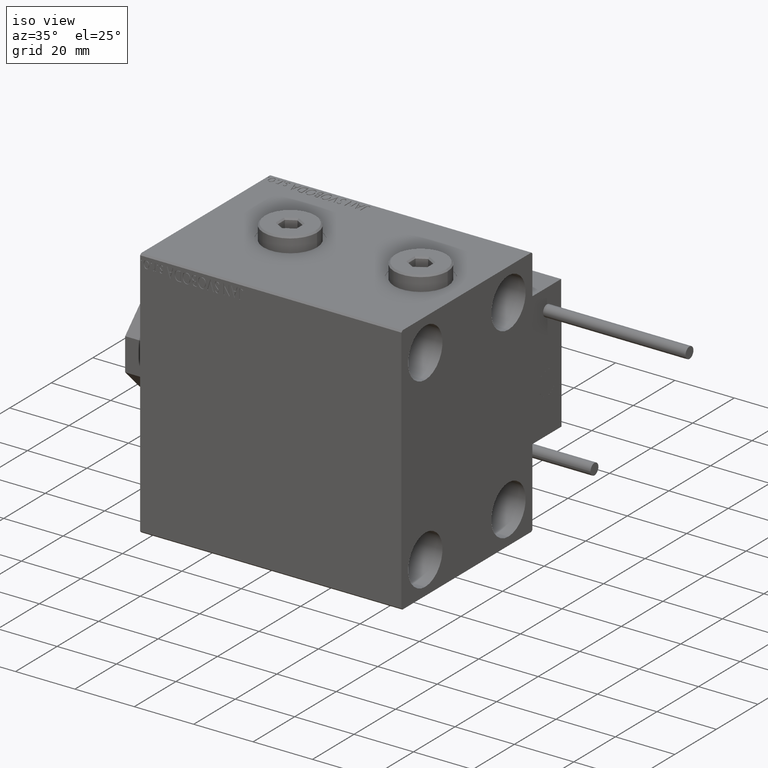
[diagram: clean part render]
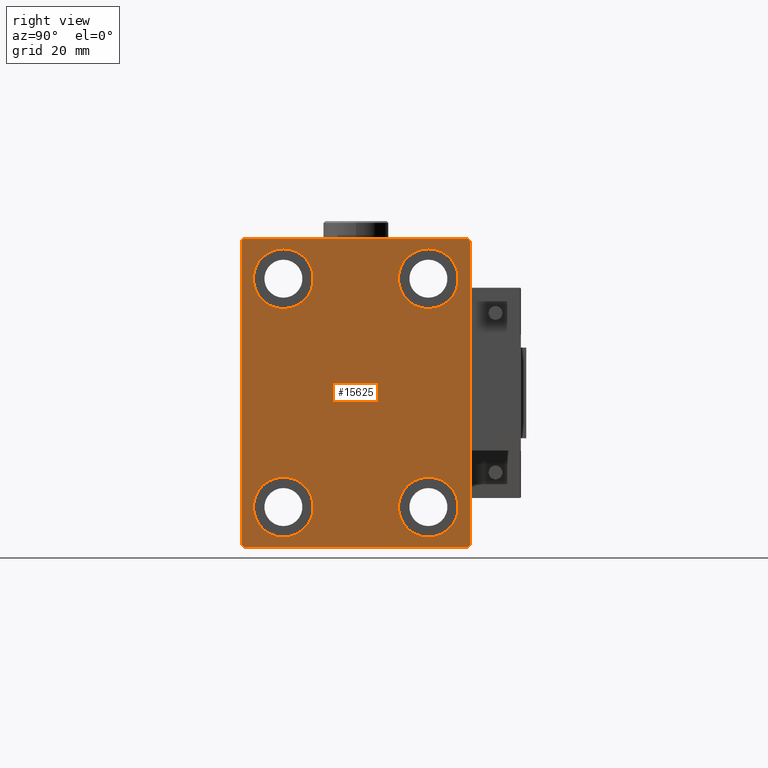
[diagram: tour spotlight — one face highlighted and labeled with its STEP entity id]
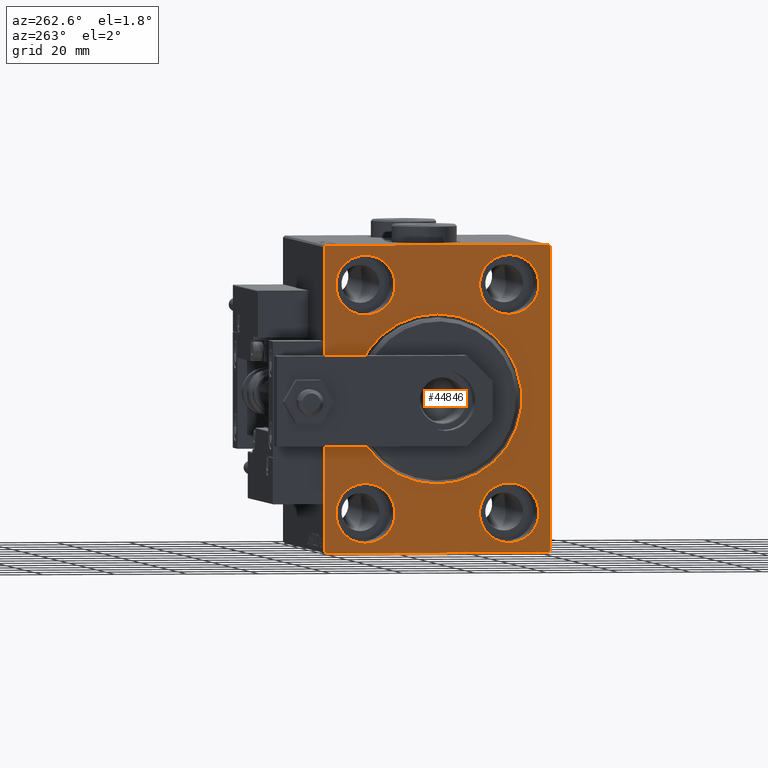
[diagram: tour spotlight — one face highlighted and labeled with its STEP entity id]
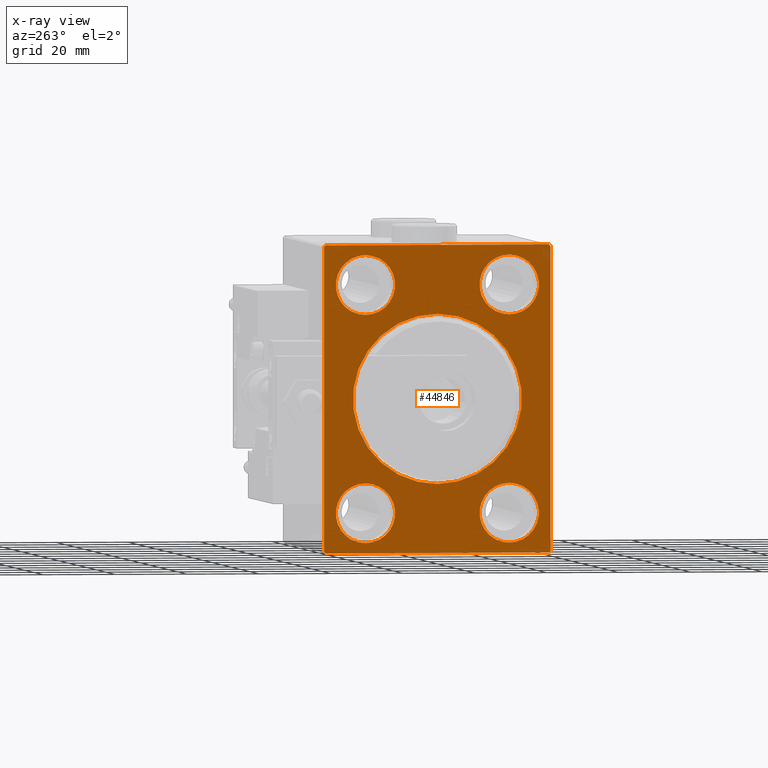
[diagram: x-ray of the same camera — body ghosted, this tour face saturated]
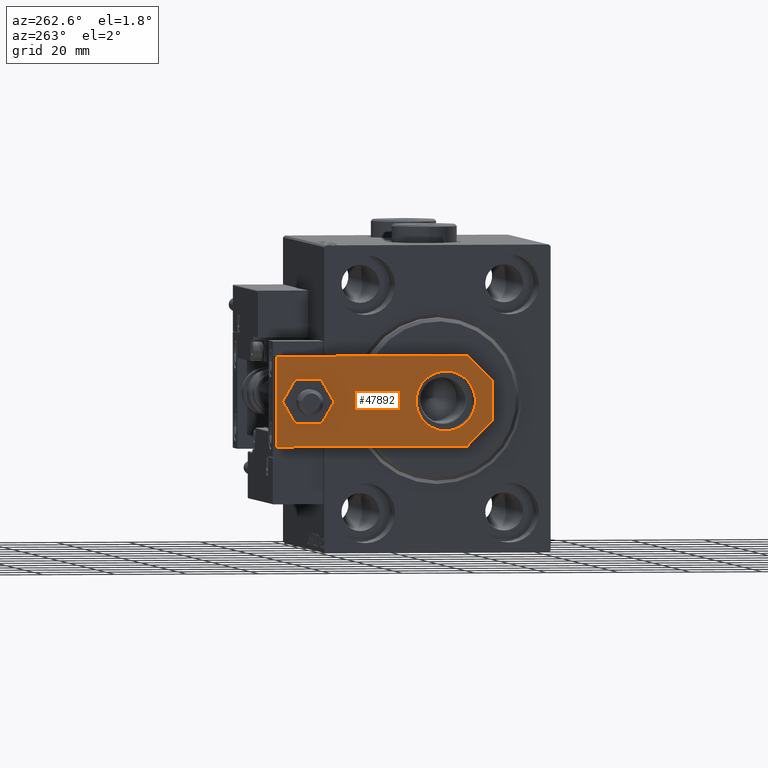
[diagram: tour spotlight — one face highlighted and labeled with its STEP entity id]
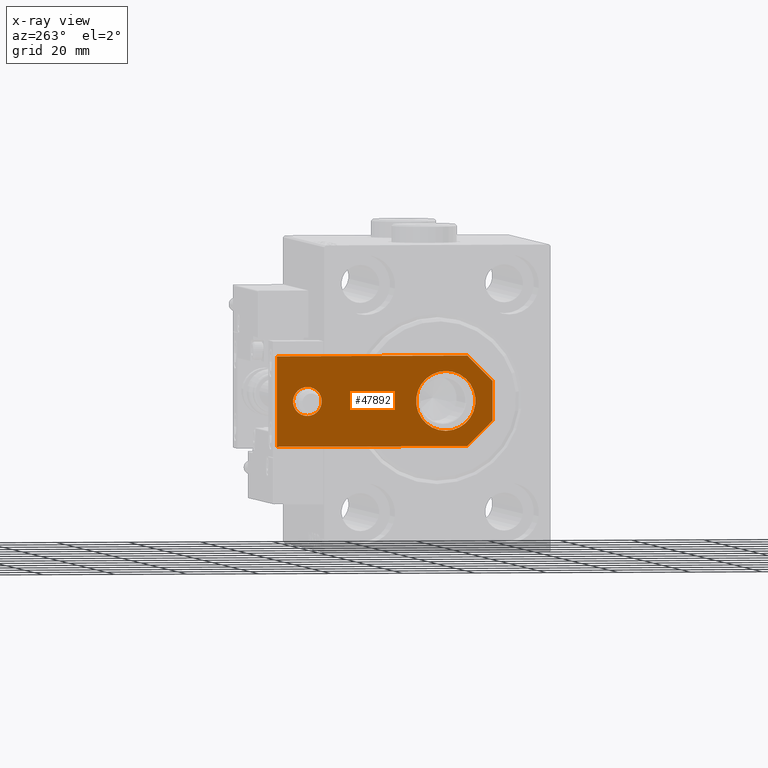
[diagram: x-ray of the same camera — body ghosted, this tour face saturated]
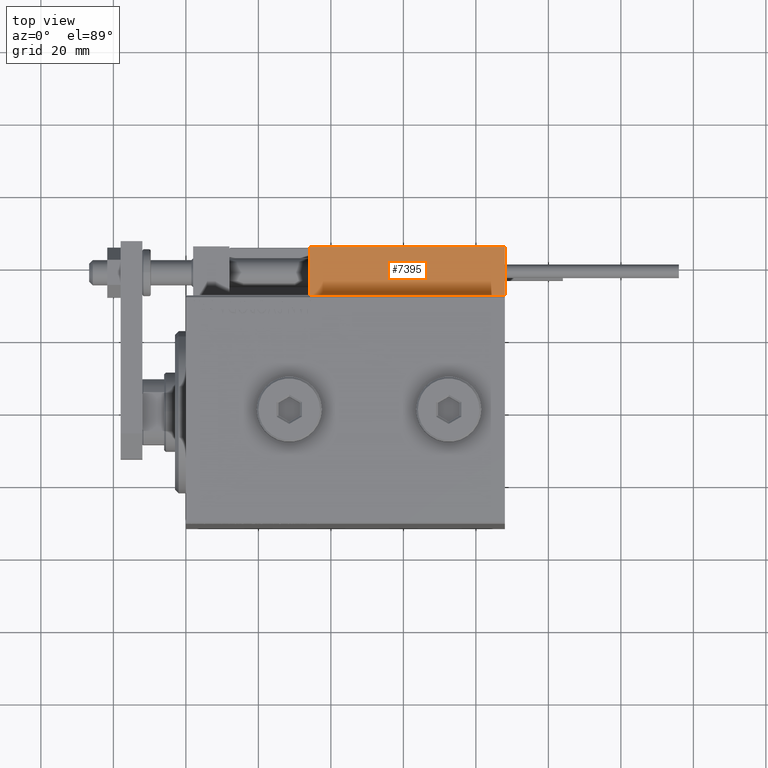
[diagram: tour spotlight — one face highlighted and labeled with its STEP entity id]
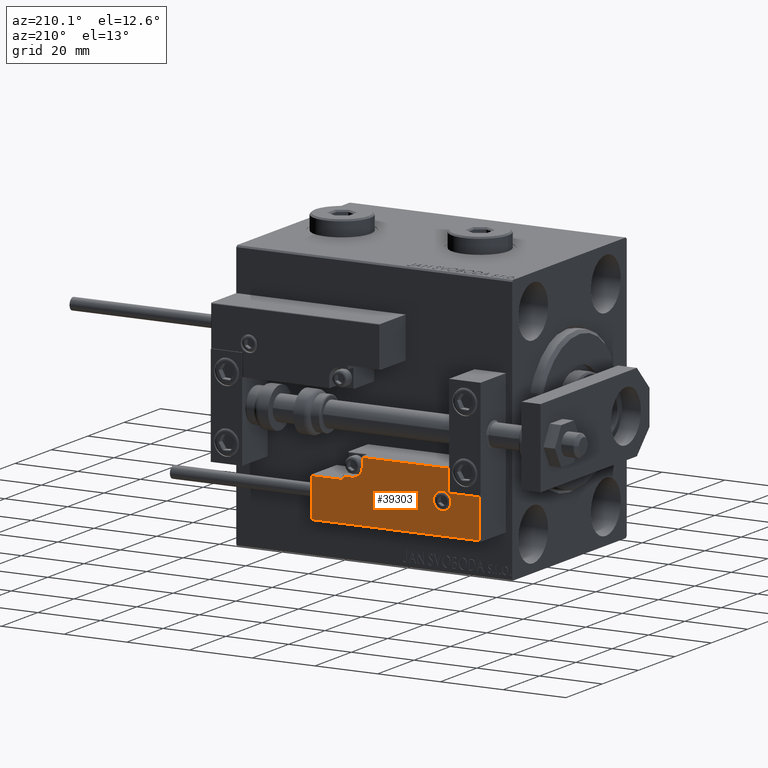
[diagram: tour spotlight — one face highlighted and labeled with its STEP entity id]
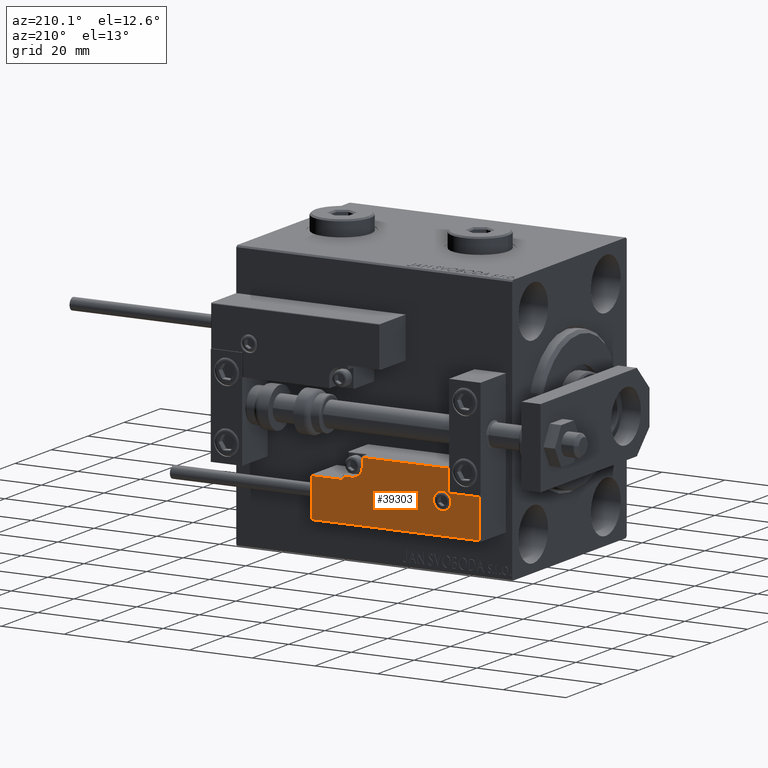
[diagram: tour spotlight — one face highlighted and labeled with its STEP entity id]
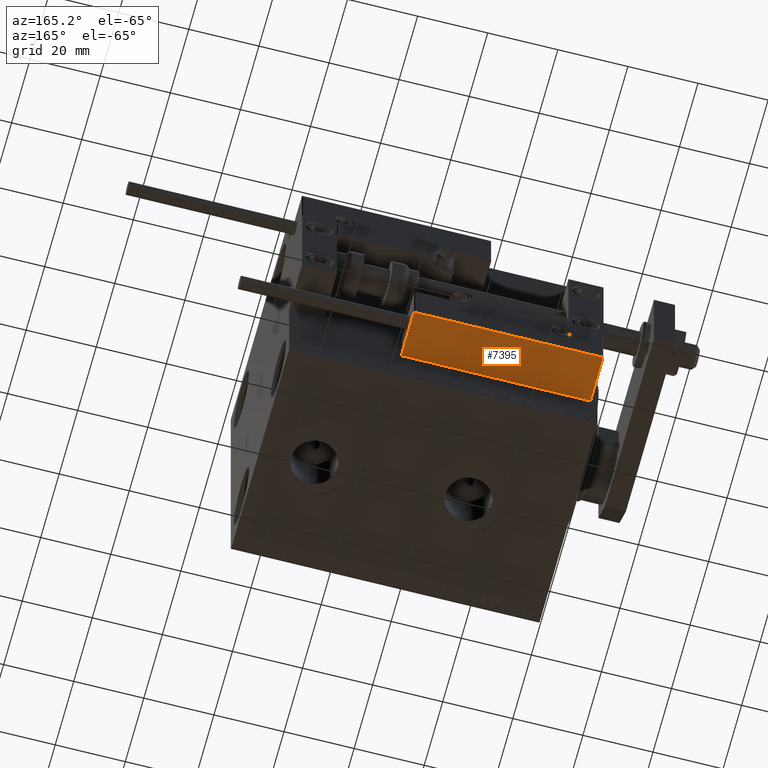
[diagram: tour spotlight — one face highlighted and labeled with its STEP entity id]
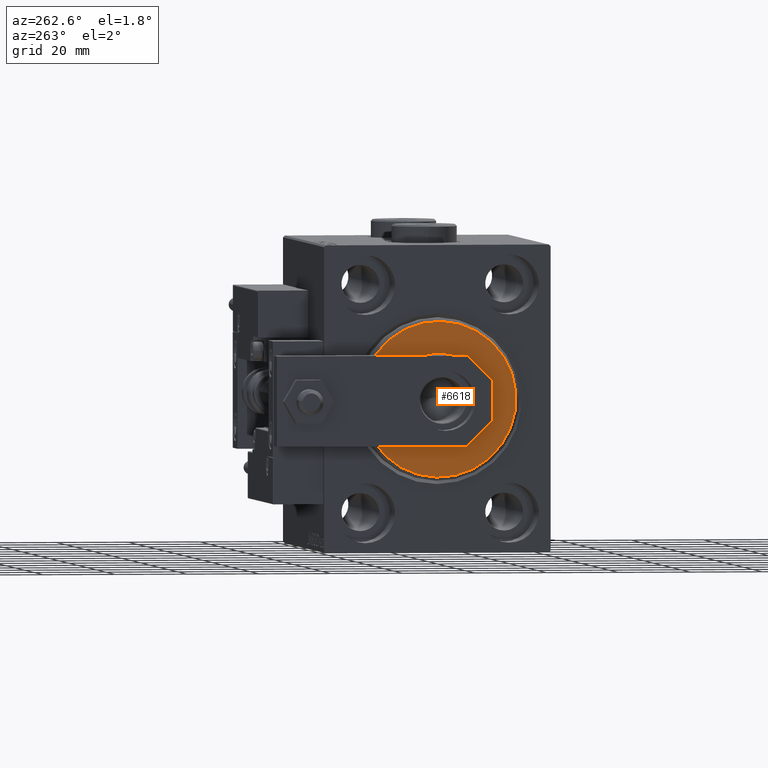
[diagram: tour spotlight — one face highlighted and labeled with its STEP entity id]
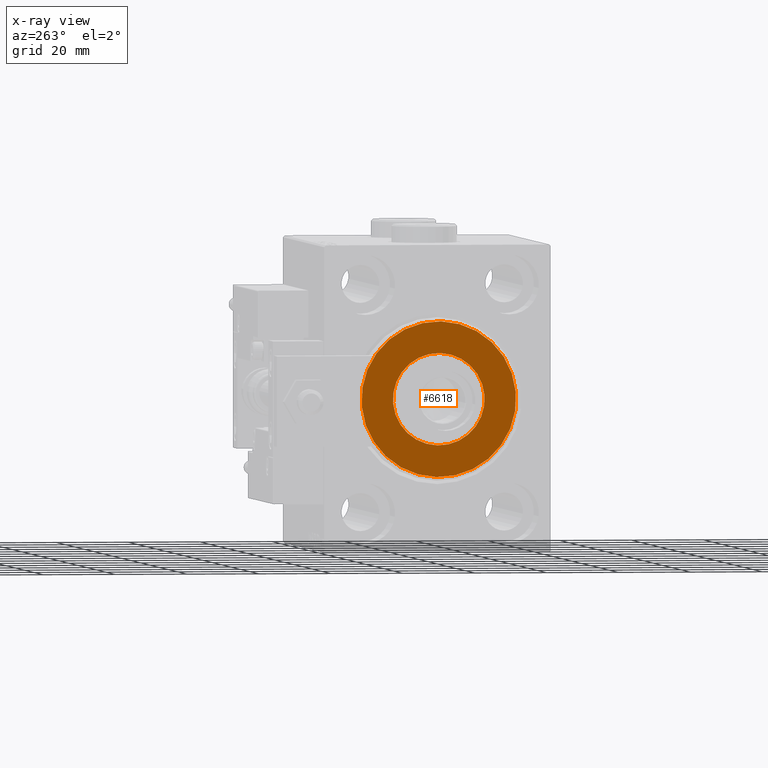
[diagram: x-ray of the same camera — body ghosted, this tour face saturated]
A machine part: a face-by-face anatomy tour. The part has 1336 B-rep faces; the first image is the clean iso view, then the 8 largest visible faces are spotlighted one at a time (largest first), each with its STEP entity span.

Face 1 — right view, entity #15625. In plain terms, the highlighted planar face has unit normal (1, 0, 0).
Definition (entity closure, byte-faithful):
#877 = DIRECTION ( 'NONE',  ( 0.000000000000000000, -1.000000000000000000, -2.202823461557850341E-16 ) ) ;
#1225 = ORIENTED_EDGE ( 'NONE', *, *, #48831, .T. ) ;
#1598 = VECTOR ( 'NONE', #30583, 1000.000000000000000 ) ;
#2138 = CIRCLE ( 'NONE', #20411, 8.249999999999992895 ) ;
#2580 = VERTEX_POINT ( 'NONE', #33834 ) ;
#2742 = ORIENTED_EDGE ( 'NONE', *, *, #33504, .T. ) ;
#3194 = FACE_BOUND ( 'NONE', #22049, .T. ) ;
#3890 = ORIENTED_EDGE ( 'NONE', *, *, #6253, .T. ) ;
#4782 = CARTESIAN_POINT ( 'NONE',  ( 88.00000000000000000, 31.50000000000000000, 42.50000000000000711 ) ) ;
#5040 = CARTESIAN_POINT ( 'NONE',  ( 88.00000000000000000, 31.00000000000002842, -42.50000000000000711 ) ) ;
#5064 = VECTOR ( 'NONE', #15574, 1000.000000000000000 ) ;
#5134 = CARTESIAN_POINT ( 'NONE',  ( 88.00000000000000000, -31.50000000000000000, 41.99999999999999289 ) ) ;
#5252 = CARTESIAN_POINT ( 'NONE',  ( 88.00000000000000000, -19.99999999999999645, 31.50000000000000000 ) ) ;
#5685 = CARTESIAN_POINT ( 'NONE',  ( 88.00000000000000000, 20.00000000000000355, 31.50000000000000000 ) ) ;
#6176 = DIRECTION ( 'NONE',  ( 0.000000000000000000, -1.632680918566406300E-16, 1.000000000000000000 ) ) ;
#6253 = EDGE_CURVE ( 'NONE', #33847, #29324, #28676, .T. ) ;
#6544 = DIRECTION ( 'NONE',  ( 0.000000000000000000, 0.000000000000000000, 1.000000000000000000 ) ) ;
#6774 = VERTEX_POINT ( 'NONE', #44938 ) ;
#7554 = DIRECTION ( 'NONE',  ( -0.000000000000000000, 0.7071067811865378028, 0.7071067811865573427 ) ) ;
#7658 = VERTEX_POINT ( 'NONE', #12430 ) ;
#7903 = VERTEX_POINT ( 'NONE', #48307 ) ;
#8061 = VERTEX_POINT ( 'NONE', #50890 ) ;
#9223 = CARTESIAN_POINT ( 'NONE',  ( 88.00000000000000000, 19.99999999999999645, -31.49999999999999289 ) ) ;
#9546 = ORIENTED_EDGE ( 'NONE', *, *, #14238, .T. ) ;
#9574 = DIRECTION ( 'NONE',  ( -1.000000000000000000, -0.000000000000000000, -0.000000000000000000 ) ) ;
#9654 = CIRCLE ( 'NONE', #46290, 8.250000000000000000 ) ;
#10082 = DIRECTION ( 'NONE',  ( 0.000000000000000000, -0.7071067811865378028, -0.7071067811865573427 ) ) ;
#10155 = ORIENTED_EDGE ( 'NONE', *, *, #34638, .T. ) ;
#10747 = DIRECTION ( 'NONE',  ( 1.000000000000000000, 0.000000000000000000, 0.000000000000000000 ) ) ;
#10800 = AXIS2_PLACEMENT_3D ( 'NONE', #26875, #10747, #38629 ) ;
#11043 = VERTEX_POINT ( 'NONE', #5040 ) ;
#11071 = EDGE_CURVE ( 'NONE', #29324, #23099, #25058, .T. ) ;
#12238 = EDGE_LOOP ( 'NONE', ( #43707, #1225 ) ) ;
#12283 = CARTESIAN_POINT ( 'NONE',  ( 88.00000000000000000, 36.74999999999999289, 36.74999999999999289 ) ) ;
#12430 = CARTESIAN_POINT ( 'NONE',  ( 88.00000000000000000, -20.00000000000000355, -23.24999999999999289 ) ) ;
#12690 = ORIENTED_EDGE ( 'NONE', *, *, #47520, .T. ) ;
#12838 = CARTESIAN_POINT ( 'NONE',  ( 88.00000000000000000, 20.00000000000000355, 39.74999999999999289 ) ) ;
#13084 = DIRECTION ( 'NONE',  ( 0.000000000000000000, 0.000000000000000000, 1.000000000000000000 ) ) ;
#13836 = DIRECTION ( 'NONE',  ( -1.000000000000000000, -0.000000000000000000, -0.000000000000000000 ) ) ;
#14238 = EDGE_CURVE ( 'NONE', #8061, #11043, #26141, .T. ) ;
#14759 = LINE ( 'NONE', #46055, #45811 ) ;
#14784 = CARTESIAN_POINT ( 'NONE',  ( 88.00000000000000000, 30.99999999999998579, 42.50000000000000711 ) ) ;
#14967 = AXIS2_PLACEMENT_3D ( 'NONE', #5685, #37450, #48695 ) ;
#15574 = DIRECTION ( 'NONE',  ( -0.000000000000000000, 0.7071067811865573427, -0.7071067811865378028 ) ) ;
#15625 = ADVANCED_FACE ( 'NONE', ( #46732, #3194, #50105, #22962, #42539 ), #42273, .T. ) ;
#15775 = ORIENTED_EDGE ( 'NONE', *, *, #29919, .T. ) ;
#15828 = EDGE_LOOP ( 'NONE', ( #15775, #38152 ) ) ;
#16661 = ORIENTED_EDGE ( 'NONE', *, *, #31740, .T. ) ;
#16974 = EDGE_CURVE ( 'NONE', #44136, #8061, #27535, .T. ) ;
#17217 = DIRECTION ( 'NONE',  ( 0.000000000000000000, 0.000000000000000000, 1.000000000000000000 ) ) ;
#17380 = CARTESIAN_POINT ( 'NONE',  ( 88.00000000000000000, 31.50000000000000000, 41.99999999999999289 ) ) ;
#17658 = EDGE_LOOP ( 'NONE', ( #26678, #10155, #33506, #44757, #9546, #40042, #16661, #3890 ) ) ;
#18139 = CARTESIAN_POINT ( 'NONE',  ( 88.00000000000000000, 19.99999999999999645, -31.49999999999999289 ) ) ;
#18242 = VECTOR ( 'NONE', #7554, 1000.000000000000000 ) ;
#19322 = CARTESIAN_POINT ( 'NONE',  ( 88.00000000000000000, 19.99999999999999645, -39.74999999999999289 ) ) ;
#19649 = VERTEX_POINT ( 'NONE', #12838 ) ;
#20411 = AXIS2_PLACEMENT_3D ( 'NONE', #50331, #13836, #42236 ) ;
#20827 = CARTESIAN_POINT ( 'NONE',  ( 88.00000000000000000, -31.50000000000000000, -42.00000000000002132 ) ) ;
#21086 = AXIS2_PLACEMENT_3D ( 'NONE', #9223, #32649, #32128 ) ;
#21240 = VERTEX_POINT ( 'NONE', #36468 ) ;
#21245 = DIRECTION ( 'NONE',  ( -1.000000000000000000, -0.000000000000000000, -0.000000000000000000 ) ) ;
#21357 = VECTOR ( 'NONE', #28153, 1000.000000000000114 ) ;
#22049 = EDGE_LOOP ( 'NONE', ( #37939, #12690 ) ) ;
#22962 = FACE_BOUND ( 'NONE', #44253, .T. ) ;
#23099 = VERTEX_POINT ( 'NONE', #42866 ) ;
#24247 = VECTOR ( 'NONE', #10082, 1000.000000000000000 ) ;
#24468 = EDGE_CURVE ( 'NONE', #6774, #7658, #43483, .T. ) ;
#25058 = LINE ( 'NONE', #4782, #46574 ) ;
#25063 = EDGE_CURVE ( 'NONE', #19649, #21240, #51090, .T. ) ;
#25153 = CARTESIAN_POINT ( 'NONE',  ( 88.00000000000000000, 20.00000000000000355, 31.50000000000000000 ) ) ;
#25423 = DIRECTION ( 'NONE',  ( 0.000000000000000000, 0.000000000000000000, 1.000000000000000000 ) ) ;
#26141 = LINE ( 'NONE', #26399, #1598 ) ;
#26196 = CARTESIAN_POINT ( 'NONE',  ( 88.00000000000000000, -19.99999999999999645, 23.25000000000000355 ) ) ;
#26399 = CARTESIAN_POINT ( 'NONE',  ( 88.00000000000000000, -31.50000000000000000, -42.50000000000000711 ) ) ;
#26678 = ORIENTED_EDGE ( 'NONE', *, *, #11071, .T. ) ;
#26875 = CARTESIAN_POINT ( 'NONE',  ( 88.00000000000000000, 0.000000000000000000, 0.000000000000000000 ) ) ;
#27032 = VERTEX_POINT ( 'NONE', #19322 ) ;
#27183 = EDGE_CURVE ( 'NONE', #36317, #7903, #36042, .T. ) ;
#27535 = LINE ( 'NONE', #39293, #5064 ) ;
#27564 = EDGE_CURVE ( 'NONE', #27032, #45232, #47767, .T. ) ;
#28153 = DIRECTION ( 'NONE',  ( -0.000000000000000000, -0.7071067811865474617, 0.7071067811865474617 ) ) ;
#28339 = CARTESIAN_POINT ( 'NONE',  ( 88.00000000000000000, 36.75000000000045475, -36.74999999999943867 ) ) ;
#28579 = AXIS2_PLACEMENT_3D ( 'NONE', #25153, #21245, #37154 ) ;
#28676 = LINE ( 'NONE', #12283, #21357 ) ;
#28954 = CARTESIAN_POINT ( 'NONE',  ( 88.00000000000000000, -20.00000000000000355, -31.49999999999999289 ) ) ;
#29324 = VERTEX_POINT ( 'NONE', #14784 ) ;
#29584 = CARTESIAN_POINT ( 'NONE',  ( 88.00000000000000000, -36.75000000000044054, 36.74999999999942446 ) ) ;
#29857 = EDGE_CURVE ( 'NONE', #11043, #2580, #36408, .T. ) ;
#29919 = EDGE_CURVE ( 'NONE', #21240, #19649, #37402, .T. ) ;
#30583 = DIRECTION ( 'NONE',  ( 0.000000000000000000, 1.000000000000000000, 0.000000000000000000 ) ) ;
#31740 = EDGE_CURVE ( 'NONE', #2580, #33847, #14759, .T. ) ;
#32128 = DIRECTION ( 'NONE',  ( 0.000000000000000000, 0.000000000000000000, 1.000000000000000000 ) ) ;
#32649 = DIRECTION ( 'NONE',  ( -1.000000000000000000, -0.000000000000000000, -0.000000000000000000 ) ) ;
#32739 = AXIS2_PLACEMENT_3D ( 'NONE', #5252, #38043, #17217 ) ;
#33504 = EDGE_CURVE ( 'NONE', #7658, #6774, #40877, .T. ) ;
#33506 = ORIENTED_EDGE ( 'NONE', *, *, #34075, .T. ) ;
#33834 = CARTESIAN_POINT ( 'NONE',  ( 88.00000000000000000, 31.50000000000001421, -42.00000000000000711 ) ) ;
#33847 = VERTEX_POINT ( 'NONE', #17380 ) ;
#34075 = EDGE_CURVE ( 'NONE', #41743, #44136, #40004, .T. ) ;
#34638 = EDGE_CURVE ( 'NONE', #23099, #41743, #45011, .T. ) ;
#36042 = CIRCLE ( 'NONE', #32739, 8.249999999999992895 ) ;
#36317 = VERTEX_POINT ( 'NONE', #26196 ) ;
#36408 = LINE ( 'NONE', #28339, #18242 ) ;
#36468 = CARTESIAN_POINT ( 'NONE',  ( 88.00000000000000000, 20.00000000000000355, 23.25000000000000355 ) ) ;
#37154 = DIRECTION ( 'NONE',  ( 0.000000000000000000, 0.000000000000000000, 1.000000000000000000 ) ) ;
#37402 = CIRCLE ( 'NONE', #14967, 8.249999999999992895 ) ;
#37450 = DIRECTION ( 'NONE',  ( -1.000000000000000000, -0.000000000000000000, -0.000000000000000000 ) ) ;
#37939 = ORIENTED_EDGE ( 'NONE', *, *, #27183, .T. ) ;
#38043 = DIRECTION ( 'NONE',  ( -1.000000000000000000, -0.000000000000000000, -0.000000000000000000 ) ) ;
#38152 = ORIENTED_EDGE ( 'NONE', *, *, #25063, .T. ) ;
#38629 = DIRECTION ( 'NONE',  ( 0.000000000000000000, 0.000000000000000000, -1.000000000000000000 ) ) ;
#39205 = AXIS2_PLACEMENT_3D ( 'NONE', #28954, #48798, #13084 ) ;
#39293 = CARTESIAN_POINT ( 'NONE',  ( 88.00000000000000000, -36.74999999999958078, -36.75000000000059686 ) ) ;
#40004 = LINE ( 'NONE', #47597, #50915 ) ;
#40042 = ORIENTED_EDGE ( 'NONE', *, *, #29857, .T. ) ;
#40877 = CIRCLE ( 'NONE', #39205, 8.250000000000000000 ) ;
#41743 = VERTEX_POINT ( 'NONE', #5134 ) ;
#42236 = DIRECTION ( 'NONE',  ( 0.000000000000000000, 0.000000000000000000, 1.000000000000000000 ) ) ;
#42273 = PLANE ( 'NONE',  #10800 ) ;
#42539 = FACE_OUTER_BOUND ( 'NONE', #17658, .T. ) ;
#42866 = CARTESIAN_POINT ( 'NONE',  ( 88.00000000000000000, -31.00000000000001421, 42.49999999999999289 ) ) ;
#43426 = DIRECTION ( 'NONE',  ( 0.000000000000000000, 0.000000000000000000, -1.000000000000000000 ) ) ;
#43483 = CIRCLE ( 'NONE', #50153, 8.250000000000000000 ) ;
#43707 = ORIENTED_EDGE ( 'NONE', *, *, #27564, .T. ) ;
#44136 = VERTEX_POINT ( 'NONE', #20827 ) ;
#44253 = EDGE_LOOP ( 'NONE', ( #49093, #2742 ) ) ;
#44757 = ORIENTED_EDGE ( 'NONE', *, *, #16974, .T. ) ;
#44938 = CARTESIAN_POINT ( 'NONE',  ( 88.00000000000000000, -20.00000000000000355, -39.74999999999999289 ) ) ;
#45011 = LINE ( 'NONE', #29584, #24247 ) ;
#45232 = VERTEX_POINT ( 'NONE', #50574 ) ;
#45811 = VECTOR ( 'NONE', #6176, 1000.000000000000000 ) ;
#46055 = CARTESIAN_POINT ( 'NONE',  ( 88.00000000000000000, 31.50000000000001421, -42.50000000000000711 ) ) ;
#46290 = AXIS2_PLACEMENT_3D ( 'NONE', #18139, #9574, #25423 ) ;
#46574 = VECTOR ( 'NONE', #877, 1000.000000000000000 ) ;
#46732 = FACE_BOUND ( 'NONE', #12238, .T. ) ;
#46946 = CARTESIAN_POINT ( 'NONE',  ( 88.00000000000000000, -20.00000000000000355, -31.49999999999999289 ) ) ;
#47520 = EDGE_CURVE ( 'NONE', #7903, #36317, #2138, .T. ) ;
#47597 = CARTESIAN_POINT ( 'NONE',  ( 88.00000000000000000, -31.50000000000000000, 42.49999999999999289 ) ) ;
#47767 = CIRCLE ( 'NONE', #21086, 8.250000000000000000 ) ;
#48307 = CARTESIAN_POINT ( 'NONE',  ( 88.00000000000000000, -19.99999999999999645, 39.74999999999999289 ) ) ;
#48695 = DIRECTION ( 'NONE',  ( 0.000000000000000000, 0.000000000000000000, 1.000000000000000000 ) ) ;
#48798 = DIRECTION ( 'NONE',  ( -1.000000000000000000, -0.000000000000000000, -0.000000000000000000 ) ) ;
#48831 = EDGE_CURVE ( 'NONE', #45232, #27032, #9654, .T. ) ;
#49093 = ORIENTED_EDGE ( 'NONE', *, *, #24468, .T. ) ;
#50105 = FACE_BOUND ( 'NONE', #15828, .T. ) ;
#50153 = AXIS2_PLACEMENT_3D ( 'NONE', #46946, #50840, #6544 ) ;
#50331 = CARTESIAN_POINT ( 'NONE',  ( 88.00000000000000000, -19.99999999999999645, 31.50000000000000000 ) ) ;
#50574 = CARTESIAN_POINT ( 'NONE',  ( 88.00000000000000000, 19.99999999999999645, -23.24999999999999289 ) ) ;
#50840 = DIRECTION ( 'NONE',  ( -1.000000000000000000, -0.000000000000000000, -0.000000000000000000 ) ) ;
#50890 = CARTESIAN_POINT ( 'NONE',  ( 88.00000000000000000, -31.00000000000000000, -42.50000000000000711 ) ) ;
#50915 = VECTOR ( 'NONE', #43426, 1000.000000000000000 ) ;
#51090 = CIRCLE ( 'NONE', #28579, 8.249999999999992895 ) ;

Face 2 — auxiliary view, entity #44846. An x-ray twin of the same camera follows (body ghosted, this face saturated) — the face is partly hidden behind the body. In plain terms, the highlighted planar face has unit normal (1, 0, 0).
Definition (entity closure, byte-faithful):
#594 = CARTESIAN_POINT ( 'NONE',  ( 0.000000000000000000, -31.00000000000000000, -42.50000000000000711 ) ) ;
#945 = CARTESIAN_POINT ( 'NONE',  ( 0.000000000000000000, 31.50000000000000000, 42.50000000000000711 ) ) ;
#950 = CARTESIAN_POINT ( 'NONE',  ( 0.000000000000000000, 2.877919977996279137E-15, -23.49999999999998934 ) ) ;
#1166 = VERTEX_POINT ( 'NONE', #49259 ) ;
#1298 = CIRCLE ( 'NONE', #29572, 8.249999999999992895 ) ;
#1922 = CARTESIAN_POINT ( 'NONE',  ( 0.000000000000000000, -20.00000000000000355, -31.49999999999999289 ) ) ;
#2003 = VERTEX_POINT ( 'NONE', #30262 ) ;
#2219 = CARTESIAN_POINT ( 'NONE',  ( 0.000000000000000000, 0.000000000000000000, 0.000000000000000000 ) ) ;
#2395 = DIRECTION ( 'NONE',  ( 0.000000000000000000, 0.000000000000000000, 1.000000000000000000 ) ) ;
#2460 = AXIS2_PLACEMENT_3D ( 'NONE', #41756, #21931, #37836 ) ;
#2489 = CARTESIAN_POINT ( 'NONE',  ( 0.000000000000000000, 19.99999999999999645, -31.49999999999999289 ) ) ;
#3182 = AXIS2_PLACEMENT_3D ( 'NONE', #29339, #41345, #41857 ) ;
#4476 = FACE_BOUND ( 'NONE', #32200, .T. ) ;
#4531 = AXIS2_PLACEMENT_3D ( 'NONE', #12024, #8121, #35966 ) ;
#4708 = LINE ( 'NONE', #40656, #49658 ) ;
#5061 = EDGE_CURVE ( 'NONE', #2003, #28759, #25198, .T. ) ;
#5331 = AXIS2_PLACEMENT_3D ( 'NONE', #50825, #26544, #18483 ) ;
#5599 = EDGE_CURVE ( 'NONE', #18073, #17488, #13915, .T. ) ;
#5838 = DIRECTION ( 'NONE',  ( 0.000000000000000000, 0.000000000000000000, 1.000000000000000000 ) ) ;
#5968 = EDGE_LOOP ( 'NONE', ( #34614, #34291 ) ) ;
#5981 = CARTESIAN_POINT ( 'NONE',  ( 0.000000000000000000, -31.00000000000000000, -42.50000000000000711 ) ) ;
#6709 = LINE ( 'NONE', #34542, #47625 ) ;
#7141 = VERTEX_POINT ( 'NONE', #34394 ) ;
#7707 = EDGE_CURVE ( 'NONE', #22531, #43801, #35608, .T. ) ;
#7777 = CIRCLE ( 'NONE', #9436, 23.49999999999998934 ) ;
#8121 = DIRECTION ( 'NONE',  ( 1.000000000000000000, 0.000000000000000000, 0.000000000000000000 ) ) ;
#8218 = AXIS2_PLACEMENT_3D ( 'NONE', #1922, #37599, #5838 ) ;
#9363 = CARTESIAN_POINT ( 'NONE',  ( 0.000000000000000000, 20.00000000000000355, 23.25000000000000355 ) ) ;
#9436 = AXIS2_PLACEMENT_3D ( 'NONE', #2219, #41568, #25383 ) ;
#10327 = DIRECTION ( 'NONE',  ( 0.000000000000000000, 0.000000000000000000, 1.000000000000000000 ) ) ;
#10642 = ORIENTED_EDGE ( 'NONE', *, *, #5599, .F. ) ;
#11182 = EDGE_CURVE ( 'NONE', #21563, #32278, #41548, .T. ) ;
#11233 = VERTEX_POINT ( 'NONE', #15421 ) ;
#11250 = CARTESIAN_POINT ( 'NONE',  ( 0.000000000000000000, 20.00000000000000355, 31.50000000000000000 ) ) ;
#11602 = CARTESIAN_POINT ( 'NONE',  ( 0.000000000000000000, 19.99999999999999645, -39.74999999999999289 ) ) ;
#12024 = CARTESIAN_POINT ( 'NONE',  ( 0.000000000000000000, 0.000000000000000000, 0.000000000000000000 ) ) ;
#12277 = FACE_BOUND ( 'NONE', #50233, .T. ) ;
#12514 = DIRECTION ( 'NONE',  ( 0.000000000000000000, -0.7071067811865378028, -0.7071067811865573427 ) ) ;
#13048 = EDGE_CURVE ( 'NONE', #32278, #21563, #44832, .T. ) ;
#13135 = ORIENTED_EDGE ( 'NONE', *, *, #27016, .T. ) ;
#13329 = VERTEX_POINT ( 'NONE', #9363 ) ;
#13503 = CARTESIAN_POINT ( 'NONE',  ( 0.000000000000000000, 31.50000000000001421, -42.50000000000000711 ) ) ;
#13650 = ORIENTED_EDGE ( 'NONE', *, *, #49555, .T. ) ;
#13915 = CIRCLE ( 'NONE', #36350, 8.250000000000000000 ) ;
#14571 = VERTEX_POINT ( 'NONE', #49836 ) ;
#14668 = LINE ( 'NONE', #46481, #49404 ) ;
#14739 = DIRECTION ( 'NONE',  ( -1.000000000000000000, 0.000000000000000000, 0.000000000000000000 ) ) ;
#14815 = DIRECTION ( 'NONE',  ( 0.000000000000000000, 0.000000000000000000, 1.000000000000000000 ) ) ;
#15247 = DIRECTION ( 'NONE',  ( -1.000000000000000000, 0.000000000000000000, 0.000000000000000000 ) ) ;
#15421 = CARTESIAN_POINT ( 'NONE',  ( 0.000000000000000000, 20.00000000000000355, 39.74999999999999289 ) ) ;
#15706 = LINE ( 'NONE', #594, #49300 ) ;
#16145 = ORIENTED_EDGE ( 'NONE', *, *, #26300, .F. ) ;
#16470 = DIRECTION ( 'NONE',  ( -0.000000000000000000, -0.7071067811865573427, 0.7071067811865378028 ) ) ;
#16537 = ORIENTED_EDGE ( 'NONE', *, *, #36359, .T. ) ;
#16757 = CARTESIAN_POINT ( 'NONE',  ( 0.000000000000000000, -19.99999999999999645, 23.25000000000000355 ) ) ;
#17488 = VERTEX_POINT ( 'NONE', #11602 ) ;
#17609 = VERTEX_POINT ( 'NONE', #25859 ) ;
#18073 = VERTEX_POINT ( 'NONE', #24394 ) ;
#18138 = CARTESIAN_POINT ( 'NONE',  ( 0.000000000000000000, -19.99999999999999645, 39.74999999999999289 ) ) ;
#18483 = DIRECTION ( 'NONE',  ( 0.000000000000000000, 0.000000000000000000, -1.000000000000000000 ) ) ;
#20070 = FACE_OUTER_BOUND ( 'NONE', #39105, .T. ) ;
#20162 = ORIENTED_EDGE ( 'NONE', *, *, #22858, .F. ) ;
#20581 = PLANE ( 'NONE',  #4531 ) ;
#20775 = ORIENTED_EDGE ( 'NONE', *, *, #11182, .F. ) ;
#21091 = CIRCLE ( 'NONE', #5331, 23.49999999999998934 ) ;
#21563 = VERTEX_POINT ( 'NONE', #28335 ) ;
#21931 = DIRECTION ( 'NONE',  ( -1.000000000000000000, 0.000000000000000000, 0.000000000000000000 ) ) ;
#22167 = DIRECTION ( 'NONE',  ( 0.000000000000000000, 0.000000000000000000, 1.000000000000000000 ) ) ;
#22174 = DIRECTION ( 'NONE',  ( -1.000000000000000000, 0.000000000000000000, 0.000000000000000000 ) ) ;
#22531 = VERTEX_POINT ( 'NONE', #18138 ) ;
#22562 = DIRECTION ( 'NONE',  ( -0.000000000000000000, 0.7071067811865378028, 0.7071067811865573427 ) ) ;
#22680 = DIRECTION ( 'NONE',  ( 0.000000000000000000, 1.000000000000000000, 0.000000000000000000 ) ) ;
#22723 = DIRECTION ( 'NONE',  ( -0.000000000000000000, 0.7071067811865474617, -0.7071067811865474617 ) ) ;
#22836 = ORIENTED_EDGE ( 'NONE', *, *, #36970, .F. ) ;
#22857 = EDGE_LOOP ( 'NONE', ( #41915, #22836 ) ) ;
#22858 = EDGE_CURVE ( 'NONE', #7141, #14571, #28007, .T. ) ;
#23362 = CARTESIAN_POINT ( 'NONE',  ( 0.000000000000000000, 20.00000000000000355, 31.50000000000000000 ) ) ;
#24228 = FACE_BOUND ( 'NONE', #22857, .T. ) ;
#24394 = CARTESIAN_POINT ( 'NONE',  ( 0.000000000000000000, 19.99999999999999645, -23.24999999999999289 ) ) ;
#24658 = ORIENTED_EDGE ( 'NONE', *, *, #26261, .T. ) ;
#25198 = LINE ( 'NONE', #13503, #38016 ) ;
#25383 = DIRECTION ( 'NONE',  ( 0.000000000000000000, 0.000000000000000000, -1.000000000000000000 ) ) ;
#25859 = CARTESIAN_POINT ( 'NONE',  ( 0.000000000000000000, 31.00000000000002842, -42.50000000000000711 ) ) ;
#26024 = AXIS2_PLACEMENT_3D ( 'NONE', #38702, #15247, #34762 ) ;
#26080 = CARTESIAN_POINT ( 'NONE',  ( 0.000000000000000000, -19.99999999999999645, 31.50000000000000000 ) ) ;
#26168 = VERTEX_POINT ( 'NONE', #950 ) ;
#26261 = EDGE_CURVE ( 'NONE', #32219, #26168, #7777, .T. ) ;
#26300 = EDGE_CURVE ( 'NONE', #17488, #18073, #31026, .T. ) ;
#26544 = DIRECTION ( 'NONE',  ( 1.000000000000000000, 0.000000000000000000, 0.000000000000000000 ) ) ;
#27016 = EDGE_CURVE ( 'NONE', #7141, #28759, #14668, .T. ) ;
#27092 = CARTESIAN_POINT ( 'NONE',  ( 0.000000000000000000, 0.000000000000000000, 23.49999999999998934 ) ) ;
#27759 = DIRECTION ( 'NONE',  ( 0.000000000000000000, -1.000000000000000000, -2.202823461557850341E-16 ) ) ;
#27995 = CARTESIAN_POINT ( 'NONE',  ( 0.000000000000000000, -31.50000000000000000, -42.00000000000002132 ) ) ;
#28007 = LINE ( 'NONE', #945, #33481 ) ;
#28335 = CARTESIAN_POINT ( 'NONE',  ( 0.000000000000000000, -20.00000000000000355, -39.74999999999999289 ) ) ;
#28705 = EDGE_CURVE ( 'NONE', #43801, #22531, #45690, .T. ) ;
#28759 = VERTEX_POINT ( 'NONE', #48492 ) ;
#29339 = CARTESIAN_POINT ( 'NONE',  ( 0.000000000000000000, -19.99999999999999645, 31.50000000000000000 ) ) ;
#29572 = AXIS2_PLACEMENT_3D ( 'NONE', #23362, #51539, #14815 ) ;
#29849 = AXIS2_PLACEMENT_3D ( 'NONE', #26080, #22174, #2395 ) ;
#30262 = CARTESIAN_POINT ( 'NONE',  ( 0.000000000000000000, 31.50000000000001421, -42.00000000000000711 ) ) ;
#30513 = DIRECTION ( 'NONE',  ( -1.000000000000000000, 0.000000000000000000, 0.000000000000000000 ) ) ;
#30817 = VECTOR ( 'NONE', #22680, 1000.000000000000000 ) ;
#31026 = CIRCLE ( 'NONE', #26024, 8.250000000000000000 ) ;
#31377 = ORIENTED_EDGE ( 'NONE', *, *, #5061, .F. ) ;
#31585 = LINE ( 'NONE', #42853, #51303 ) ;
#31798 = FACE_BOUND ( 'NONE', #51568, .T. ) ;
#32081 = ORIENTED_EDGE ( 'NONE', *, *, #35823, .T. ) ;
#32200 = EDGE_LOOP ( 'NONE', ( #44509, #20775 ) ) ;
#32207 = EDGE_CURVE ( 'NONE', #35246, #17609, #50858, .T. ) ;
#32219 = VERTEX_POINT ( 'NONE', #27092 ) ;
#32278 = VERTEX_POINT ( 'NONE', #44310 ) ;
#33481 = VECTOR ( 'NONE', #27759, 1000.000000000000000 ) ;
#33645 = ORIENTED_EDGE ( 'NONE', *, *, #49248, .F. ) ;
#34291 = ORIENTED_EDGE ( 'NONE', *, *, #28705, .F. ) ;
#34394 = CARTESIAN_POINT ( 'NONE',  ( 0.000000000000000000, 30.99999999999998579, 42.50000000000000711 ) ) ;
#34542 = CARTESIAN_POINT ( 'NONE',  ( 0.000000000000000000, -31.50000000000000000, 41.99999999999999289 ) ) ;
#34614 = ORIENTED_EDGE ( 'NONE', *, *, #7707, .F. ) ;
#34762 = DIRECTION ( 'NONE',  ( 0.000000000000000000, 0.000000000000000000, 1.000000000000000000 ) ) ;
#35246 = VERTEX_POINT ( 'NONE', #5981 ) ;
#35608 = CIRCLE ( 'NONE', #3182, 8.249999999999992895 ) ;
#35823 = EDGE_CURVE ( 'NONE', #35246, #49106, #15706, .T. ) ;
#35966 = DIRECTION ( 'NONE',  ( 0.000000000000000000, 0.000000000000000000, -1.000000000000000000 ) ) ;
#36350 = AXIS2_PLACEMENT_3D ( 'NONE', #2489, #14739, #10327 ) ;
#36359 = EDGE_CURVE ( 'NONE', #1166, #14571, #6709, .T. ) ;
#36970 = EDGE_CURVE ( 'NONE', #13329, #11233, #45163, .T. ) ;
#37599 = DIRECTION ( 'NONE',  ( -1.000000000000000000, 0.000000000000000000, 0.000000000000000000 ) ) ;
#37836 = DIRECTION ( 'NONE',  ( 0.000000000000000000, 0.000000000000000000, 1.000000000000000000 ) ) ;
#38016 = VECTOR ( 'NONE', #40870, 1000.000000000000000 ) ;
#38702 = CARTESIAN_POINT ( 'NONE',  ( 0.000000000000000000, 19.99999999999999645, -31.49999999999999289 ) ) ;
#39105 = EDGE_LOOP ( 'NONE', ( #33645, #16537, #20162, #13135, #31377, #13650, #50913, #32081 ) ) ;
#39110 = CARTESIAN_POINT ( 'NONE',  ( 0.000000000000000000, -31.50000000000000000, -42.50000000000000711 ) ) ;
#39641 = FACE_BOUND ( 'NONE', #5968, .T. ) ;
#40345 = EDGE_CURVE ( 'NONE', #26168, #32219, #21091, .T. ) ;
#40656 = CARTESIAN_POINT ( 'NONE',  ( 0.000000000000000000, 31.50000000000001421, -42.00000000000000711 ) ) ;
#40870 = DIRECTION ( 'NONE',  ( 0.000000000000000000, -1.632680918566406300E-16, 1.000000000000000000 ) ) ;
#41345 = DIRECTION ( 'NONE',  ( -1.000000000000000000, 0.000000000000000000, 0.000000000000000000 ) ) ;
#41548 = CIRCLE ( 'NONE', #2460, 8.250000000000000000 ) ;
#41568 = DIRECTION ( 'NONE',  ( 1.000000000000000000, 0.000000000000000000, 0.000000000000000000 ) ) ;
#41756 = CARTESIAN_POINT ( 'NONE',  ( 0.000000000000000000, -20.00000000000000355, -31.49999999999999289 ) ) ;
#41857 = DIRECTION ( 'NONE',  ( 0.000000000000000000, 0.000000000000000000, 1.000000000000000000 ) ) ;
#41915 = ORIENTED_EDGE ( 'NONE', *, *, #47770, .F. ) ;
#42335 = DIRECTION ( 'NONE',  ( 0.000000000000000000, 0.000000000000000000, -1.000000000000000000 ) ) ;
#42853 = CARTESIAN_POINT ( 'NONE',  ( 0.000000000000000000, -31.50000000000000000, 42.49999999999999289 ) ) ;
#43416 = ORIENTED_EDGE ( 'NONE', *, *, #40345, .T. ) ;
#43801 = VERTEX_POINT ( 'NONE', #16757 ) ;
#44310 = CARTESIAN_POINT ( 'NONE',  ( 0.000000000000000000, -20.00000000000000355, -23.24999999999999289 ) ) ;
#44509 = ORIENTED_EDGE ( 'NONE', *, *, #13048, .F. ) ;
#44832 = CIRCLE ( 'NONE', #8218, 8.250000000000000000 ) ;
#44846 = ADVANCED_FACE ( 'NONE', ( #31798, #12277, #39641, #24228, #4476, #20070 ), #20581, .F. ) ;
#45163 = CIRCLE ( 'NONE', #49333, 8.249999999999992895 ) ;
#45690 = CIRCLE ( 'NONE', #29849, 8.249999999999992895 ) ;
#46481 = CARTESIAN_POINT ( 'NONE',  ( 0.000000000000000000, 30.99999999999998579, 42.50000000000000711 ) ) ;
#47625 = VECTOR ( 'NONE', #22562, 1000.000000000000000 ) ;
#47770 = EDGE_CURVE ( 'NONE', #11233, #13329, #1298, .T. ) ;
#48492 = CARTESIAN_POINT ( 'NONE',  ( 0.000000000000000000, 31.50000000000000000, 41.99999999999999289 ) ) ;
#49106 = VERTEX_POINT ( 'NONE', #27995 ) ;
#49248 = EDGE_CURVE ( 'NONE', #1166, #49106, #31585, .T. ) ;
#49259 = CARTESIAN_POINT ( 'NONE',  ( 0.000000000000000000, -31.50000000000000000, 41.99999999999999289 ) ) ;
#49300 = VECTOR ( 'NONE', #16470, 1000.000000000000000 ) ;
#49333 = AXIS2_PLACEMENT_3D ( 'NONE', #11250, #30513, #22167 ) ;
#49404 = VECTOR ( 'NONE', #22723, 1000.000000000000114 ) ;
#49555 = EDGE_CURVE ( 'NONE', #2003, #17609, #4708, .T. ) ;
#49658 = VECTOR ( 'NONE', #12514, 1000.000000000000000 ) ;
#49836 = CARTESIAN_POINT ( 'NONE',  ( 0.000000000000000000, -31.00000000000001421, 42.49999999999999289 ) ) ;
#50233 = EDGE_LOOP ( 'NONE', ( #10642, #16145 ) ) ;
#50825 = CARTESIAN_POINT ( 'NONE',  ( 0.000000000000000000, 0.000000000000000000, 0.000000000000000000 ) ) ;
#50858 = LINE ( 'NONE', #39110, #30817 ) ;
#50913 = ORIENTED_EDGE ( 'NONE', *, *, #32207, .F. ) ;
#51303 = VECTOR ( 'NONE', #42335, 1000.000000000000000 ) ;
#51539 = DIRECTION ( 'NONE',  ( -1.000000000000000000, 0.000000000000000000, 0.000000000000000000 ) ) ;
#51568 = EDGE_LOOP ( 'NONE', ( #24658, #43416 ) ) ;

Face 3 — auxiliary view, entity #47892. An x-ray twin of the same camera follows (body ghosted, this face saturated) — the face is partly hidden behind the body. In plain terms, the highlighted planar face has unit normal (-1, 0, 0).
Definition (entity closure, byte-faithful):
#1674 = VECTOR ( 'NONE', #25440, 1000.000000000000000 ) ;
#3485 = DIRECTION ( 'NONE',  ( 1.000000000000000000, 0.000000000000000000, 0.000000000000000000 ) ) ;
#3843 = FACE_BOUND ( 'NONE', #51182, .T. ) ;
#4572 = LINE ( 'NONE', #12117, #41656 ) ;
#4874 = DIRECTION ( 'NONE',  ( 1.000000000000000000, 0.000000000000000000, 0.000000000000000000 ) ) ;
#6137 = ORIENTED_EDGE ( 'NONE', *, *, #19139, .F. ) ;
#6324 = CARTESIAN_POINT ( 'NONE',  ( 12.50000000000000355, 7.000000000000006217, 6.000000000000000000 ) ) ;
#6707 = CARTESIAN_POINT ( 'NONE',  ( -1.432611055310774642E-16, 51.50000000000000000, 6.000000000000000000 ) ) ;
#7946 = EDGE_CURVE ( 'NONE', #39754, #50338, #31857, .T. ) ;
#8891 = CARTESIAN_POINT ( 'NONE',  ( -4.000000000000000888, 51.50000000000000000, 6.000000000000000000 ) ) ;
#9592 = LINE ( 'NONE', #17141, #1674 ) ;
#10887 = EDGE_CURVE ( 'NONE', #50338, #36921, #48306, .T. ) ;
#11299 = LINE ( 'NONE', #22483, #11751 ) ;
#11531 = CARTESIAN_POINT ( 'NONE',  ( -1.432611055310774642E-16, 51.50000000000000000, 6.000000000000000000 ) ) ;
#11751 = VECTOR ( 'NONE', #3485, 1000.000000000000000 ) ;
#12067 = AXIS2_PLACEMENT_3D ( 'NONE', #11531, #50911, #43835 ) ;
#12117 = CARTESIAN_POINT ( 'NONE',  ( -2.750000000000013767, -2.750000000000005773, 6.000000000000000000 ) ) ;
#12425 = DIRECTION ( 'NONE',  ( -0.000000000000000000, 0.000000000000000000, 1.000000000000000000 ) ) ;
#12644 = ORIENTED_EDGE ( 'NONE', *, *, #49713, .F. ) ;
#13854 = CIRCLE ( 'NONE', #42174, 8.250000000000000000 ) ;
#14250 = EDGE_CURVE ( 'NONE', #36921, #16256, #42073, .T. ) ;
#15954 = CARTESIAN_POINT ( 'NONE',  ( -12.50000000000000355, 7.000000000000013323, 6.000000000000000000 ) ) ;
#16215 = EDGE_CURVE ( 'NONE', #16256, #38858, #9592, .T. ) ;
#16256 = VERTEX_POINT ( 'NONE', #28338 ) ;
#16659 = ORIENTED_EDGE ( 'NONE', *, *, #7946, .T. ) ;
#16759 = DIRECTION ( 'NONE',  ( 0.000000000000000000, 1.000000000000000000, 0.000000000000000000 ) ) ;
#17141 = CARTESIAN_POINT ( 'NONE',  ( -12.49999999999999822, 60.00000000000000000, 6.000000000000000000 ) ) ;
#18678 = EDGE_CURVE ( 'NONE', #39993, #39754, #11299, .T. ) ;
#19139 = EDGE_CURVE ( 'NONE', #40256, #30952, #36724, .T. ) ;
#19211 = FACE_OUTER_BOUND ( 'NONE', #27726, .T. ) ;
#19991 = CARTESIAN_POINT ( 'NONE',  ( 8.250000000000000000, 13.00000000000000000, 6.000000000000000000 ) ) ;
#21646 = VERTEX_POINT ( 'NONE', #19991 ) ;
#22107 = DIRECTION ( 'NONE',  ( 0.000000000000000000, 0.000000000000000000, 1.000000000000000000 ) ) ;
#22242 = EDGE_LOOP ( 'NONE', ( #12644, #51043 ) ) ;
#22483 = CARTESIAN_POINT ( 'NONE',  ( -12.50000000000000355, 4.814824860968089633E-32, 6.000000000000000000 ) ) ;
#22632 = CARTESIAN_POINT ( 'NONE',  ( -9.629649721936179265E-32, 12.99999999999999822, 6.000000000000000000 ) ) ;
#23241 = VERTEX_POINT ( 'NONE', #36029 ) ;
#24640 = CARTESIAN_POINT ( 'NONE',  ( 0.000000000000000000, 0.000000000000000000, 6.000000000000000000 ) ) ;
#25440 = DIRECTION ( 'NONE',  ( -8.673617379884035472E-17, -1.000000000000000000, 0.000000000000000000 ) ) ;
#26418 = VECTOR ( 'NONE', #27697, 999.9999999999998863 ) ;
#26975 = AXIS2_PLACEMENT_3D ( 'NONE', #35444, #38632, #51386 ) ;
#27279 = PLANE ( 'NONE',  #41233 ) ;
#27697 = DIRECTION ( 'NONE',  ( 0.7071067811865486830, 0.7071067811865464625, -0.000000000000000000 ) ) ;
#27726 = EDGE_LOOP ( 'NONE', ( #42119, #48916, #37986, #16659, #42122, #39228 ) ) ;
#28338 = CARTESIAN_POINT ( 'NONE',  ( -12.49999999999999822, 60.00000000000000000, 6.000000000000000000 ) ) ;
#28722 = CARTESIAN_POINT ( 'NONE',  ( 12.50000000000000355, 4.814824860968089633E-32, 6.000000000000000000 ) ) ;
#30952 = VERTEX_POINT ( 'NONE', #48652 ) ;
#31857 = LINE ( 'NONE', #51447, #26418 ) ;
#33009 = EDGE_CURVE ( 'NONE', #38858, #39993, #4572, .T. ) ;
#34876 = DIRECTION ( 'NONE',  ( 1.000000000000000000, 0.000000000000000000, 0.000000000000000000 ) ) ;
#35101 = FACE_BOUND ( 'NONE', #22242, .T. ) ;
#35444 = CARTESIAN_POINT ( 'NONE',  ( -9.629649721936179265E-32, 12.99999999999999822, 6.000000000000000000 ) ) ;
#36029 = CARTESIAN_POINT ( 'NONE',  ( -8.250000000000000000, 12.99999999999999822, 6.000000000000000000 ) ) ;
#36418 = ORIENTED_EDGE ( 'NONE', *, *, #47254, .F. ) ;
#36724 = CIRCLE ( 'NONE', #39242, 4.000000000000000888 ) ;
#36921 = VERTEX_POINT ( 'NONE', #45151 ) ;
#37063 = CARTESIAN_POINT ( 'NONE',  ( -5.500000000000010658, 4.814824860968089633E-32, 6.000000000000000000 ) ) ;
#37986 = ORIENTED_EDGE ( 'NONE', *, *, #18678, .T. ) ;
#38610 = CARTESIAN_POINT ( 'NONE',  ( 5.499999999999976907, 4.814824860968089633E-32, 6.000000000000000000 ) ) ;
#38632 = DIRECTION ( 'NONE',  ( 0.000000000000000000, 0.000000000000000000, 1.000000000000000000 ) ) ;
#38858 = VERTEX_POINT ( 'NONE', #15954 ) ;
#39190 = DIRECTION ( 'NONE',  ( -1.000000000000000000, 0.000000000000000000, 0.000000000000000000 ) ) ;
#39228 = ORIENTED_EDGE ( 'NONE', *, *, #14250, .T. ) ;
#39242 = AXIS2_PLACEMENT_3D ( 'NONE', #6707, #44574, #48998 ) ;
#39754 = VERTEX_POINT ( 'NONE', #38610 ) ;
#39860 = VECTOR ( 'NONE', #39190, 1000.000000000000000 ) ;
#39993 = VERTEX_POINT ( 'NONE', #37063 ) ;
#40256 = VERTEX_POINT ( 'NONE', #8891 ) ;
#41233 = AXIS2_PLACEMENT_3D ( 'NONE', #24640, #12425, #4874 ) ;
#41656 = VECTOR ( 'NONE', #48351, 1000.000000000000000 ) ;
#42073 = LINE ( 'NONE', #43106, #39860 ) ;
#42119 = ORIENTED_EDGE ( 'NONE', *, *, #16215, .T. ) ;
#42122 = ORIENTED_EDGE ( 'NONE', *, *, #10887, .T. ) ;
#42174 = AXIS2_PLACEMENT_3D ( 'NONE', #22632, #22107, #34876 ) ;
#43106 = CARTESIAN_POINT ( 'NONE',  ( 12.50000000000000355, 60.00000000000000000, 6.000000000000000000 ) ) ;
#43835 = DIRECTION ( 'NONE',  ( 1.000000000000000000, 0.000000000000000000, 0.000000000000000000 ) ) ;
#44566 = CIRCLE ( 'NONE', #12067, 4.000000000000000888 ) ;
#44574 = DIRECTION ( 'NONE',  ( 0.000000000000000000, 0.000000000000000000, 1.000000000000000000 ) ) ;
#44908 = VECTOR ( 'NONE', #16759, 1000.000000000000000 ) ;
#45151 = CARTESIAN_POINT ( 'NONE',  ( 12.50000000000000355, 60.00000000000000000, 6.000000000000000000 ) ) ;
#45408 = EDGE_CURVE ( 'NONE', #21646, #23241, #50302, .T. ) ;
#47254 = EDGE_CURVE ( 'NONE', #30952, #40256, #44566, .T. ) ;
#47892 = ADVANCED_FACE ( 'NONE', ( #3843, #19211, #35101 ), #27279, .T. ) ;
#48306 = LINE ( 'NONE', #28722, #44908 ) ;
#48351 = DIRECTION ( 'NONE',  ( 0.7071067811865465735, -0.7071067811865485719, 0.000000000000000000 ) ) ;
#48652 = CARTESIAN_POINT ( 'NONE',  ( 4.000000000000000888, 51.50000000000000000, 6.000000000000000000 ) ) ;
#48916 = ORIENTED_EDGE ( 'NONE', *, *, #33009, .T. ) ;
#48998 = DIRECTION ( 'NONE',  ( 1.000000000000000000, 0.000000000000000000, 0.000000000000000000 ) ) ;
#49713 = EDGE_CURVE ( 'NONE', #23241, #21646, #13854, .T. ) ;
#50302 = CIRCLE ( 'NONE', #26975, 8.250000000000000000 ) ;
#50338 = VERTEX_POINT ( 'NONE', #6324 ) ;
#50911 = DIRECTION ( 'NONE',  ( 0.000000000000000000, 0.000000000000000000, 1.000000000000000000 ) ) ;
#51043 = ORIENTED_EDGE ( 'NONE', *, *, #45408, .F. ) ;
#51182 = EDGE_LOOP ( 'NONE', ( #6137, #36418 ) ) ;
#51386 = DIRECTION ( 'NONE',  ( 1.000000000000000000, 0.000000000000000000, 0.000000000000000000 ) ) ;
#51447 = CARTESIAN_POINT ( 'NONE',  ( 2.749999999999980016, -2.749999999999988010, 6.000000000000000000 ) ) ;

Face 4 — top view, entity #7395. In plain terms, the highlighted planar face has unit normal (-0, -0, -1).
Definition (entity closure, byte-faithful):
#1331 = ORIENTED_EDGE ( 'NONE', *, *, #45825, .F. ) ;
#1525 = ORIENTED_EDGE ( 'NONE', *, *, #31498, .T. ) ;
#2370 = ORIENTED_EDGE ( 'NONE', *, *, #46466, .T. ) ;
#2471 = EDGE_CURVE ( 'NONE', #49118, #27230, #36019, .T. ) ;
#2907 = VECTOR ( 'NONE', #9280, 1000.000000000000000 ) ;
#4808 = AXIS2_PLACEMENT_3D ( 'NONE', #41655, #18453, #34336 ) ;
#7395 = ADVANCED_FACE ( 'NONE', ( #17930 ), #45332, .F. ) ;
#8170 = DIRECTION ( 'NONE',  ( 1.000000000000000000, -6.424901762877063495E-17, -0.000000000000000000 ) ) ;
#9280 = DIRECTION ( 'NONE',  ( -0.000000000000000000, -0.000000000000000000, -1.000000000000000000 ) ) ;
#12931 = VECTOR ( 'NONE', #41193, 1000.000000000000000 ) ;
#15579 = DIRECTION ( 'NONE',  ( -1.000000000000000000, 6.424901762877062263E-17, 0.000000000000000000 ) ) ;
#16339 = LINE ( 'NONE', #43470, #26649 ) ;
#17930 = FACE_OUTER_BOUND ( 'NONE', #42244, .T. ) ;
#18453 = DIRECTION ( 'NONE',  ( -6.424901762877063495E-17, -1.000000000000000000, 0.000000000000000000 ) ) ;
#22425 = CARTESIAN_POINT ( 'NONE',  ( -26.99999999999993605, 20.00000000000002132, 0.000000000000000000 ) ) ;
#26649 = VECTOR ( 'NONE', #15579, 1000.000000000000000 ) ;
#27230 = VERTEX_POINT ( 'NONE', #39334 ) ;
#31453 = VERTEX_POINT ( 'NONE', #35355 ) ;
#31498 = EDGE_CURVE ( 'NONE', #31453, #37004, #16339, .T. ) ;
#32536 = ORIENTED_EDGE ( 'NONE', *, *, #2471, .T. ) ;
#34336 = DIRECTION ( 'NONE',  ( 1.000000000000000000, -6.424901762877063495E-17, 0.000000000000000000 ) ) ;
#35355 = CARTESIAN_POINT ( 'NONE',  ( 27.00000000000006395, 20.00000000000001776, 0.000000000000000000 ) ) ;
#36019 = LINE ( 'NONE', #43369, #37899 ) ;
#36595 = CARTESIAN_POINT ( 'NONE',  ( -26.99999999999993605, 20.00000000000002132, 13.70000000000000107 ) ) ;
#37004 = VERTEX_POINT ( 'NONE', #22425 ) ;
#37899 = VECTOR ( 'NONE', #8170, 1000.000000000000000 ) ;
#39334 = CARTESIAN_POINT ( 'NONE',  ( 27.00000000000006395, 20.00000000000001776, 13.70000000000000107 ) ) ;
#41193 = DIRECTION ( 'NONE',  ( -0.000000000000000000, -0.000000000000000000, -1.000000000000000000 ) ) ;
#41655 = CARTESIAN_POINT ( 'NONE',  ( 27.00000000000006395, 20.00000000000001776, 14.00000000000000000 ) ) ;
#42244 = EDGE_LOOP ( 'NONE', ( #1331, #32536, #2370, #1525 ) ) ;
#43369 = CARTESIAN_POINT ( 'NONE',  ( 27.00000000000006395, 20.00000000000001776, 13.70000000000000107 ) ) ;
#43470 = CARTESIAN_POINT ( 'NONE',  ( 27.00000000000006395, 20.00000000000001776, 0.000000000000000000 ) ) ;
#44084 = LINE ( 'NONE', #44859, #12931 ) ;
#44730 = LINE ( 'NONE', #48639, #2907 ) ;
#44859 = CARTESIAN_POINT ( 'NONE',  ( 27.00000000000006395, 20.00000000000001776, 14.00000000000000000 ) ) ;
#45332 = PLANE ( 'NONE',  #4808 ) ;
#45825 = EDGE_CURVE ( 'NONE', #49118, #37004, #44730, .T. ) ;
#46466 = EDGE_CURVE ( 'NONE', #27230, #31453, #44084, .T. ) ;
#48639 = CARTESIAN_POINT ( 'NONE',  ( -26.99999999999993605, 20.00000000000002132, 14.00000000000000000 ) ) ;
#49118 = VERTEX_POINT ( 'NONE', #36595 ) ;

Face 5 — auxiliary view, entity #39303. In plain terms, the highlighted planar face has unit normal (0, 1, -0).
Definition (entity closure, byte-faithful):
#30 = VECTOR ( 'NONE', #17179, 1000.000000000000000 ) ;
#599 = EDGE_LOOP ( 'NONE', ( #28578, #14426, #28105, #11234, #38783, #14682, #30240, #23404, #49144, #42942, #26201 ) ) ;
#1118 = AXIS2_PLACEMENT_3D ( 'NONE', #36716, #24716, #9628 ) ;
#1956 = LINE ( 'NONE', #29296, #9637 ) ;
#2272 = EDGE_CURVE ( 'NONE', #12354, #5388, #1956, .T. ) ;
#2800 = VERTEX_POINT ( 'NONE', #31979 ) ;
#3643 = CARTESIAN_POINT ( 'NONE',  ( 16.69999999999999929, 7.000000000000009770, 14.00000000000000000 ) ) ;
#3950 = EDGE_LOOP ( 'NONE', ( #23382, #35314 ) ) ;
#4860 = DIRECTION ( 'NONE',  ( 0.000000000000000000, -0.000000000000000000, -1.000000000000000000 ) ) ;
#5388 = VERTEX_POINT ( 'NONE', #24880 ) ;
#5435 = CARTESIAN_POINT ( 'NONE',  ( 13.99999999999999822, 3.000000000000002665, 14.00000000000000000 ) ) ;
#5562 = CARTESIAN_POINT ( 'NONE',  ( 16.69999999999999929, 6.300000000000003375, 14.00000000000000000 ) ) ;
#6244 = CARTESIAN_POINT ( 'NONE',  ( -16.69999999999999218, 3.252606517456513302E-15, 14.00000000000000000 ) ) ;
#8541 = DIRECTION ( 'NONE',  ( 1.000000000000000000, 0.000000000000000000, 0.000000000000000000 ) ) ;
#8931 = DIRECTION ( 'NONE',  ( 1.000000000000000000, 5.782411586589357639E-16, -0.000000000000000000 ) ) ;
#9078 = CARTESIAN_POINT ( 'NONE',  ( -17.59999999999994813, 9.800000000000004263, 14.00000000000000000 ) ) ;
#9406 = VECTOR ( 'NONE', #11708, 1000.000000000000000 ) ;
#9627 = LINE ( 'NONE', #6244, #30 ) ;
#9628 = DIRECTION ( 'NONE',  ( 1.000000000000000000, 0.000000000000000000, 0.000000000000000000 ) ) ;
#9637 = VECTOR ( 'NONE', #33457, 1000.000000000000000 ) ;
#10651 = VERTEX_POINT ( 'NONE', #13945 ) ;
#11234 = ORIENTED_EDGE ( 'NONE', *, *, #11532, .T. ) ;
#11532 = EDGE_CURVE ( 'NONE', #15347, #37293, #20724, .T. ) ;
#11708 = DIRECTION ( 'NONE',  ( 9.912705577010318647E-16, 1.000000000000000000, 0.000000000000000000 ) ) ;
#11942 = VECTOR ( 'NONE', #46510, 1000.000000000000000 ) ;
#12354 = VERTEX_POINT ( 'NONE', #23410 ) ;
#12502 = PLANE ( 'NONE',  #1118 ) ;
#13945 = CARTESIAN_POINT ( 'NONE',  ( -16.69999999999999218, 7.300000000000003375, 14.00000000000000000 ) ) ;
#14426 = ORIENTED_EDGE ( 'NONE', *, *, #35104, .T. ) ;
#14682 = ORIENTED_EDGE ( 'NONE', *, *, #22491, .T. ) ;
#15347 = VERTEX_POINT ( 'NONE', #18866 ) ;
#15653 = LINE ( 'NONE', #47466, #24242 ) ;
#15689 = CARTESIAN_POINT ( 'NONE',  ( 26.70000000000006324, 20.00000000000001776, 14.00000000000000000 ) ) ;
#15827 = VERTEX_POINT ( 'NONE', #31786 ) ;
#17179 = DIRECTION ( 'NONE',  ( 0.000000000000000000, -1.000000000000000000, 0.000000000000000000 ) ) ;
#17984 = CARTESIAN_POINT ( 'NONE',  ( 10.69999999999999929, 3.000000000000003109, 14.00000000000000000 ) ) ;
#18866 = CARTESIAN_POINT ( 'NONE',  ( 10.69999999999999929, 3.000000000000003109, 14.00000000000000000 ) ) ;
#19334 = DIRECTION ( 'NONE',  ( 0.000000000000000000, 1.000000000000000000, -0.000000000000000000 ) ) ;
#19502 = LINE ( 'NONE', #3643, #9406 ) ;
#19594 = VECTOR ( 'NONE', #50068, 1000.000000000000000 ) ;
#20470 = EDGE_CURVE ( 'NONE', #50636, #10651, #15653, .T. ) ;
#20724 = CIRCLE ( 'NONE', #38236, 3.299999999999997158 ) ;
#20802 = DIRECTION ( 'NONE',  ( 1.000000000000000000, -0.000000000000000000, 0.000000000000000000 ) ) ;
#21288 = DIRECTION ( 'NONE',  ( 0.000000000000000000, -0.000000000000000000, -1.000000000000000000 ) ) ;
#21341 = CARTESIAN_POINT ( 'NONE',  ( -26.69999999999994600, 7.300000000000005151, 14.00000000000000000 ) ) ;
#21769 = VECTOR ( 'NONE', #20802, 1000.000000000000000 ) ;
#22478 = LINE ( 'NONE', #30565, #11942 ) ;
#22491 = EDGE_CURVE ( 'NONE', #26672, #15827, #19502, .T. ) ;
#23235 = DIRECTION ( 'NONE',  ( 1.000000000000000000, -1.734723475976796001E-16, 0.000000000000000000 ) ) ;
#23382 = ORIENTED_EDGE ( 'NONE', *, *, #31544, .T. ) ;
#23404 = ORIENTED_EDGE ( 'NONE', *, *, #47227, .T. ) ;
#23410 = CARTESIAN_POINT ( 'NONE',  ( 26.70000000000006324, 19.70000000000001705, 14.00000000000000000 ) ) ;
#23646 = EDGE_CURVE ( 'NONE', #50981, #2800, #46904, .T. ) ;
#24242 = VECTOR ( 'NONE', #39123, 1000.000000000000000 ) ;
#24625 = DIRECTION ( 'NONE',  ( 1.000000000000000000, 0.000000000000000000, 0.000000000000000000 ) ) ;
#24713 = LINE ( 'NONE', #27854, #21769 ) ;
#24716 = DIRECTION ( 'NONE',  ( -0.000000000000000000, 0.000000000000000000, 1.000000000000000000 ) ) ;
#24880 = CARTESIAN_POINT ( 'NONE',  ( -26.69999999999993534, 19.70000000000002061, 14.00000000000000000 ) ) ;
#25038 = LINE ( 'NONE', #33121, #37543 ) ;
#25112 = EDGE_CURVE ( 'NONE', #15827, #43277, #26372, .T. ) ;
#26066 = VECTOR ( 'NONE', #23235, 1000.000000000000000 ) ;
#26081 = CARTESIAN_POINT ( 'NONE',  ( 26.70000000000006324, 7.300000000000007816, 14.00000000000000000 ) ) ;
#26201 = ORIENTED_EDGE ( 'NONE', *, *, #20470, .T. ) ;
#26372 = LINE ( 'NONE', #38392, #26066 ) ;
#26672 = VERTEX_POINT ( 'NONE', #5562 ) ;
#27463 = CIRCLE ( 'NONE', #44981, 2.800000000000000266 ) ;
#27853 = VECTOR ( 'NONE', #19334, 1000.000000000000000 ) ;
#27854 = CARTESIAN_POINT ( 'NONE',  ( 11.00000000000000000, 0.3000000000000032085, 14.00000000000000000 ) ) ;
#28105 = ORIENTED_EDGE ( 'NONE', *, *, #47465, .T. ) ;
#28303 = DIRECTION ( 'NONE',  ( 0.000000000000000000, -0.000000000000000000, -1.000000000000000000 ) ) ;
#28578 = ORIENTED_EDGE ( 'NONE', *, *, #32429, .T. ) ;
#28737 = CARTESIAN_POINT ( 'NONE',  ( 10.69999999999999929, 0.3000000000000032085, 14.00000000000000000 ) ) ;
#29296 = CARTESIAN_POINT ( 'NONE',  ( -26.99999999999993605, 19.70000000000002061, 14.00000000000000000 ) ) ;
#30240 = ORIENTED_EDGE ( 'NONE', *, *, #25112, .T. ) ;
#30565 = CARTESIAN_POINT ( 'NONE',  ( -26.69999999999994600, 7.000000000000005329, 14.00000000000000000 ) ) ;
#31544 = EDGE_CURVE ( 'NONE', #2800, #50981, #27463, .T. ) ;
#31786 = CARTESIAN_POINT ( 'NONE',  ( 16.69999999999999929, 7.300000000000009592, 14.00000000000000000 ) ) ;
#31979 = CARTESIAN_POINT ( 'NONE',  ( -11.99999999999994849, 9.800000000000004263, 14.00000000000000000 ) ) ;
#32429 = EDGE_CURVE ( 'NONE', #10651, #45620, #9627, .T. ) ;
#32544 = FACE_OUTER_BOUND ( 'NONE', #599, .T. ) ;
#33121 = CARTESIAN_POINT ( 'NONE',  ( 17.00000000000000000, 6.300000000000003375, 14.00000000000000000 ) ) ;
#33457 = DIRECTION ( 'NONE',  ( -1.000000000000000000, 6.424901762877063495E-17, -0.000000000000000000 ) ) ;
#33552 = AXIS2_PLACEMENT_3D ( 'NONE', #46932, #4860, #24625 ) ;
#33564 = EDGE_CURVE ( 'NONE', #37293, #26672, #25038, .T. ) ;
#35104 = EDGE_CURVE ( 'NONE', #45620, #40763, #24713, .T. ) ;
#35314 = ORIENTED_EDGE ( 'NONE', *, *, #23646, .T. ) ;
#36716 = CARTESIAN_POINT ( 'NONE',  ( 0.000000000000000000, 0.000000000000000000, 14.00000000000000000 ) ) ;
#37293 = VERTEX_POINT ( 'NONE', #51531 ) ;
#37543 = VECTOR ( 'NONE', #8931, 1000.000000000000000 ) ;
#38236 = AXIS2_PLACEMENT_3D ( 'NONE', #5435, #21288, #40869 ) ;
#38392 = CARTESIAN_POINT ( 'NONE',  ( 27.00000000000006395, 7.300000000000007816, 14.00000000000000000 ) ) ;
#38783 = ORIENTED_EDGE ( 'NONE', *, *, #33564, .T. ) ;
#38818 = EDGE_CURVE ( 'NONE', #5388, #50636, #22478, .T. ) ;
#39123 = DIRECTION ( 'NONE',  ( 1.000000000000000000, -1.734723475976815230E-16, 0.000000000000000000 ) ) ;
#39303 = ADVANCED_FACE ( 'NONE', ( #45340, #32544 ), #12502, .T. ) ;
#39412 = LINE ( 'NONE', #15689, #27853 ) ;
#40763 = VERTEX_POINT ( 'NONE', #28737 ) ;
#40869 = DIRECTION ( 'NONE',  ( 1.000000000000000000, 0.000000000000000000, 0.000000000000000000 ) ) ;
#42942 = ORIENTED_EDGE ( 'NONE', *, *, #38818, .T. ) ;
#43277 = VERTEX_POINT ( 'NONE', #26081 ) ;
#44981 = AXIS2_PLACEMENT_3D ( 'NONE', #48150, #28303, #8541 ) ;
#45340 = FACE_BOUND ( 'NONE', #3950, .T. ) ;
#45620 = VERTEX_POINT ( 'NONE', #48242 ) ;
#46510 = DIRECTION ( 'NONE',  ( -8.006416042969869188E-16, -1.000000000000000000, 0.000000000000000000 ) ) ;
#46904 = CIRCLE ( 'NONE', #33552, 2.800000000000000266 ) ;
#46932 = CARTESIAN_POINT ( 'NONE',  ( -14.79999999999994920, 9.800000000000004263, 14.00000000000000000 ) ) ;
#47227 = EDGE_CURVE ( 'NONE', #43277, #12354, #39412, .T. ) ;
#47465 = EDGE_CURVE ( 'NONE', #40763, #15347, #49803, .T. ) ;
#47466 = CARTESIAN_POINT ( 'NONE',  ( -16.99999999999999289, 7.300000000000003375, 14.00000000000000000 ) ) ;
#48150 = CARTESIAN_POINT ( 'NONE',  ( -14.79999999999994920, 9.800000000000004263, 14.00000000000000000 ) ) ;
#48242 = CARTESIAN_POINT ( 'NONE',  ( -16.69999999999999218, 0.3000000000000032085, 14.00000000000000000 ) ) ;
#49144 = ORIENTED_EDGE ( 'NONE', *, *, #2272, .T. ) ;
#49803 = LINE ( 'NONE', #17984, #19594 ) ;
#50068 = DIRECTION ( 'NONE',  ( -0.000000000000000000, 1.000000000000000000, -0.000000000000000000 ) ) ;
#50636 = VERTEX_POINT ( 'NONE', #21341 ) ;
#50981 = VERTEX_POINT ( 'NONE', #9078 ) ;
#51531 = CARTESIAN_POINT ( 'NONE',  ( 13.99999999999999822, 6.300000000000001599, 14.00000000000000000 ) ) ;

Face 6 — auxiliary view, entity #39303. In plain terms, the highlighted planar face has unit normal (-0, 1, -0).
Definition (entity closure, byte-faithful):
#30 = VECTOR ( 'NONE', #17179, 1000.000000000000000 ) ;
#599 = EDGE_LOOP ( 'NONE', ( #28578, #14426, #28105, #11234, #38783, #14682, #30240, #23404, #49144, #42942, #26201 ) ) ;
#1118 = AXIS2_PLACEMENT_3D ( 'NONE', #36716, #24716, #9628 ) ;
#1956 = LINE ( 'NONE', #29296, #9637 ) ;
#2272 = EDGE_CURVE ( 'NONE', #12354, #5388, #1956, .T. ) ;
#2800 = VERTEX_POINT ( 'NONE', #31979 ) ;
#3643 = CARTESIAN_POINT ( 'NONE',  ( 16.69999999999999929, 7.000000000000009770, 14.00000000000000000 ) ) ;
#3950 = EDGE_LOOP ( 'NONE', ( #23382, #35314 ) ) ;
#4860 = DIRECTION ( 'NONE',  ( 0.000000000000000000, -0.000000000000000000, -1.000000000000000000 ) ) ;
#5388 = VERTEX_POINT ( 'NONE', #24880 ) ;
#5435 = CARTESIAN_POINT ( 'NONE',  ( 13.99999999999999822, 3.000000000000002665, 14.00000000000000000 ) ) ;
#5562 = CARTESIAN_POINT ( 'NONE',  ( 16.69999999999999929, 6.300000000000003375, 14.00000000000000000 ) ) ;
#6244 = CARTESIAN_POINT ( 'NONE',  ( -16.69999999999999218, 3.252606517456513302E-15, 14.00000000000000000 ) ) ;
#8541 = DIRECTION ( 'NONE',  ( 1.000000000000000000, 0.000000000000000000, 0.000000000000000000 ) ) ;
#8931 = DIRECTION ( 'NONE',  ( 1.000000000000000000, 5.782411586589357639E-16, -0.000000000000000000 ) ) ;
#9078 = CARTESIAN_POINT ( 'NONE',  ( -17.59999999999994813, 9.800000000000004263, 14.00000000000000000 ) ) ;
#9406 = VECTOR ( 'NONE', #11708, 1000.000000000000000 ) ;
#9627 = LINE ( 'NONE', #6244, #30 ) ;
#9628 = DIRECTION ( 'NONE',  ( 1.000000000000000000, 0.000000000000000000, 0.000000000000000000 ) ) ;
#9637 = VECTOR ( 'NONE', #33457, 1000.000000000000000 ) ;
#10651 = VERTEX_POINT ( 'NONE', #13945 ) ;
#11234 = ORIENTED_EDGE ( 'NONE', *, *, #11532, .T. ) ;
#11532 = EDGE_CURVE ( 'NONE', #15347, #37293, #20724, .T. ) ;
#11708 = DIRECTION ( 'NONE',  ( 9.912705577010318647E-16, 1.000000000000000000, 0.000000000000000000 ) ) ;
#11942 = VECTOR ( 'NONE', #46510, 1000.000000000000000 ) ;
#12354 = VERTEX_POINT ( 'NONE', #23410 ) ;
#12502 = PLANE ( 'NONE',  #1118 ) ;
#13945 = CARTESIAN_POINT ( 'NONE',  ( -16.69999999999999218, 7.300000000000003375, 14.00000000000000000 ) ) ;
#14426 = ORIENTED_EDGE ( 'NONE', *, *, #35104, .T. ) ;
#14682 = ORIENTED_EDGE ( 'NONE', *, *, #22491, .T. ) ;
#15347 = VERTEX_POINT ( 'NONE', #18866 ) ;
#15653 = LINE ( 'NONE', #47466, #24242 ) ;
#15689 = CARTESIAN_POINT ( 'NONE',  ( 26.70000000000006324, 20.00000000000001776, 14.00000000000000000 ) ) ;
#15827 = VERTEX_POINT ( 'NONE', #31786 ) ;
#17179 = DIRECTION ( 'NONE',  ( 0.000000000000000000, -1.000000000000000000, 0.000000000000000000 ) ) ;
#17984 = CARTESIAN_POINT ( 'NONE',  ( 10.69999999999999929, 3.000000000000003109, 14.00000000000000000 ) ) ;
#18866 = CARTESIAN_POINT ( 'NONE',  ( 10.69999999999999929, 3.000000000000003109, 14.00000000000000000 ) ) ;
#19334 = DIRECTION ( 'NONE',  ( 0.000000000000000000, 1.000000000000000000, -0.000000000000000000 ) ) ;
#19502 = LINE ( 'NONE', #3643, #9406 ) ;
#19594 = VECTOR ( 'NONE', #50068, 1000.000000000000000 ) ;
#20470 = EDGE_CURVE ( 'NONE', #50636, #10651, #15653, .T. ) ;
#20724 = CIRCLE ( 'NONE', #38236, 3.299999999999997158 ) ;
#20802 = DIRECTION ( 'NONE',  ( 1.000000000000000000, -0.000000000000000000, 0.000000000000000000 ) ) ;
#21288 = DIRECTION ( 'NONE',  ( 0.000000000000000000, -0.000000000000000000, -1.000000000000000000 ) ) ;
#21341 = CARTESIAN_POINT ( 'NONE',  ( -26.69999999999994600, 7.300000000000005151, 14.00000000000000000 ) ) ;
#21769 = VECTOR ( 'NONE', #20802, 1000.000000000000000 ) ;
#22478 = LINE ( 'NONE', #30565, #11942 ) ;
#22491 = EDGE_CURVE ( 'NONE', #26672, #15827, #19502, .T. ) ;
#23235 = DIRECTION ( 'NONE',  ( 1.000000000000000000, -1.734723475976796001E-16, 0.000000000000000000 ) ) ;
#23382 = ORIENTED_EDGE ( 'NONE', *, *, #31544, .T. ) ;
#23404 = ORIENTED_EDGE ( 'NONE', *, *, #47227, .T. ) ;
#23410 = CARTESIAN_POINT ( 'NONE',  ( 26.70000000000006324, 19.70000000000001705, 14.00000000000000000 ) ) ;
#23646 = EDGE_CURVE ( 'NONE', #50981, #2800, #46904, .T. ) ;
#24242 = VECTOR ( 'NONE', #39123, 1000.000000000000000 ) ;
#24625 = DIRECTION ( 'NONE',  ( 1.000000000000000000, 0.000000000000000000, 0.000000000000000000 ) ) ;
#24713 = LINE ( 'NONE', #27854, #21769 ) ;
#24716 = DIRECTION ( 'NONE',  ( -0.000000000000000000, 0.000000000000000000, 1.000000000000000000 ) ) ;
#24880 = CARTESIAN_POINT ( 'NONE',  ( -26.69999999999993534, 19.70000000000002061, 14.00000000000000000 ) ) ;
#25038 = LINE ( 'NONE', #33121, #37543 ) ;
#25112 = EDGE_CURVE ( 'NONE', #15827, #43277, #26372, .T. ) ;
#26066 = VECTOR ( 'NONE', #23235, 1000.000000000000000 ) ;
#26081 = CARTESIAN_POINT ( 'NONE',  ( 26.70000000000006324, 7.300000000000007816, 14.00000000000000000 ) ) ;
#26201 = ORIENTED_EDGE ( 'NONE', *, *, #20470, .T. ) ;
#26372 = LINE ( 'NONE', #38392, #26066 ) ;
#26672 = VERTEX_POINT ( 'NONE', #5562 ) ;
#27463 = CIRCLE ( 'NONE', #44981, 2.800000000000000266 ) ;
#27853 = VECTOR ( 'NONE', #19334, 1000.000000000000000 ) ;
#27854 = CARTESIAN_POINT ( 'NONE',  ( 11.00000000000000000, 0.3000000000000032085, 14.00000000000000000 ) ) ;
#28105 = ORIENTED_EDGE ( 'NONE', *, *, #47465, .T. ) ;
#28303 = DIRECTION ( 'NONE',  ( 0.000000000000000000, -0.000000000000000000, -1.000000000000000000 ) ) ;
#28578 = ORIENTED_EDGE ( 'NONE', *, *, #32429, .T. ) ;
#28737 = CARTESIAN_POINT ( 'NONE',  ( 10.69999999999999929, 0.3000000000000032085, 14.00000000000000000 ) ) ;
#29296 = CARTESIAN_POINT ( 'NONE',  ( -26.99999999999993605, 19.70000000000002061, 14.00000000000000000 ) ) ;
#30240 = ORIENTED_EDGE ( 'NONE', *, *, #25112, .T. ) ;
#30565 = CARTESIAN_POINT ( 'NONE',  ( -26.69999999999994600, 7.000000000000005329, 14.00000000000000000 ) ) ;
#31544 = EDGE_CURVE ( 'NONE', #2800, #50981, #27463, .T. ) ;
#31786 = CARTESIAN_POINT ( 'NONE',  ( 16.69999999999999929, 7.300000000000009592, 14.00000000000000000 ) ) ;
#31979 = CARTESIAN_POINT ( 'NONE',  ( -11.99999999999994849, 9.800000000000004263, 14.00000000000000000 ) ) ;
#32429 = EDGE_CURVE ( 'NONE', #10651, #45620, #9627, .T. ) ;
#32544 = FACE_OUTER_BOUND ( 'NONE', #599, .T. ) ;
#33121 = CARTESIAN_POINT ( 'NONE',  ( 17.00000000000000000, 6.300000000000003375, 14.00000000000000000 ) ) ;
#33457 = DIRECTION ( 'NONE',  ( -1.000000000000000000, 6.424901762877063495E-17, -0.000000000000000000 ) ) ;
#33552 = AXIS2_PLACEMENT_3D ( 'NONE', #46932, #4860, #24625 ) ;
#33564 = EDGE_CURVE ( 'NONE', #37293, #26672, #25038, .T. ) ;
#35104 = EDGE_CURVE ( 'NONE', #45620, #40763, #24713, .T. ) ;
#35314 = ORIENTED_EDGE ( 'NONE', *, *, #23646, .T. ) ;
#36716 = CARTESIAN_POINT ( 'NONE',  ( 0.000000000000000000, 0.000000000000000000, 14.00000000000000000 ) ) ;
#37293 = VERTEX_POINT ( 'NONE', #51531 ) ;
#37543 = VECTOR ( 'NONE', #8931, 1000.000000000000000 ) ;
#38236 = AXIS2_PLACEMENT_3D ( 'NONE', #5435, #21288, #40869 ) ;
#38392 = CARTESIAN_POINT ( 'NONE',  ( 27.00000000000006395, 7.300000000000007816, 14.00000000000000000 ) ) ;
#38783 = ORIENTED_EDGE ( 'NONE', *, *, #33564, .T. ) ;
#38818 = EDGE_CURVE ( 'NONE', #5388, #50636, #22478, .T. ) ;
#39123 = DIRECTION ( 'NONE',  ( 1.000000000000000000, -1.734723475976815230E-16, 0.000000000000000000 ) ) ;
#39303 = ADVANCED_FACE ( 'NONE', ( #45340, #32544 ), #12502, .T. ) ;
#39412 = LINE ( 'NONE', #15689, #27853 ) ;
#40763 = VERTEX_POINT ( 'NONE', #28737 ) ;
#40869 = DIRECTION ( 'NONE',  ( 1.000000000000000000, 0.000000000000000000, 0.000000000000000000 ) ) ;
#42942 = ORIENTED_EDGE ( 'NONE', *, *, #38818, .T. ) ;
#43277 = VERTEX_POINT ( 'NONE', #26081 ) ;
#44981 = AXIS2_PLACEMENT_3D ( 'NONE', #48150, #28303, #8541 ) ;
#45340 = FACE_BOUND ( 'NONE', #3950, .T. ) ;
#45620 = VERTEX_POINT ( 'NONE', #48242 ) ;
#46510 = DIRECTION ( 'NONE',  ( -8.006416042969869188E-16, -1.000000000000000000, 0.000000000000000000 ) ) ;
#46904 = CIRCLE ( 'NONE', #33552, 2.800000000000000266 ) ;
#46932 = CARTESIAN_POINT ( 'NONE',  ( -14.79999999999994920, 9.800000000000004263, 14.00000000000000000 ) ) ;
#47227 = EDGE_CURVE ( 'NONE', #43277, #12354, #39412, .T. ) ;
#47465 = EDGE_CURVE ( 'NONE', #40763, #15347, #49803, .T. ) ;
#47466 = CARTESIAN_POINT ( 'NONE',  ( -16.99999999999999289, 7.300000000000003375, 14.00000000000000000 ) ) ;
#48150 = CARTESIAN_POINT ( 'NONE',  ( -14.79999999999994920, 9.800000000000004263, 14.00000000000000000 ) ) ;
#48242 = CARTESIAN_POINT ( 'NONE',  ( -16.69999999999999218, 0.3000000000000032085, 14.00000000000000000 ) ) ;
#49144 = ORIENTED_EDGE ( 'NONE', *, *, #2272, .T. ) ;
#49803 = LINE ( 'NONE', #17984, #19594 ) ;
#50068 = DIRECTION ( 'NONE',  ( -0.000000000000000000, 1.000000000000000000, -0.000000000000000000 ) ) ;
#50636 = VERTEX_POINT ( 'NONE', #21341 ) ;
#50981 = VERTEX_POINT ( 'NONE', #9078 ) ;
#51531 = CARTESIAN_POINT ( 'NONE',  ( 13.99999999999999822, 6.300000000000001599, 14.00000000000000000 ) ) ;

Face 7 — auxiliary view, entity #7395. In plain terms, the highlighted planar face has unit normal (0, 0, 1).
Definition (entity closure, byte-faithful):
#1331 = ORIENTED_EDGE ( 'NONE', *, *, #45825, .F. ) ;
#1525 = ORIENTED_EDGE ( 'NONE', *, *, #31498, .T. ) ;
#2370 = ORIENTED_EDGE ( 'NONE', *, *, #46466, .T. ) ;
#2471 = EDGE_CURVE ( 'NONE', #49118, #27230, #36019, .T. ) ;
#2907 = VECTOR ( 'NONE', #9280, 1000.000000000000000 ) ;
#4808 = AXIS2_PLACEMENT_3D ( 'NONE', #41655, #18453, #34336 ) ;
#7395 = ADVANCED_FACE ( 'NONE', ( #17930 ), #45332, .F. ) ;
#8170 = DIRECTION ( 'NONE',  ( 1.000000000000000000, -6.424901762877063495E-17, -0.000000000000000000 ) ) ;
#9280 = DIRECTION ( 'NONE',  ( -0.000000000000000000, -0.000000000000000000, -1.000000000000000000 ) ) ;
#12931 = VECTOR ( 'NONE', #41193, 1000.000000000000000 ) ;
#15579 = DIRECTION ( 'NONE',  ( -1.000000000000000000, 6.424901762877062263E-17, 0.000000000000000000 ) ) ;
#16339 = LINE ( 'NONE', #43470, #26649 ) ;
#17930 = FACE_OUTER_BOUND ( 'NONE', #42244, .T. ) ;
#18453 = DIRECTION ( 'NONE',  ( -6.424901762877063495E-17, -1.000000000000000000, 0.000000000000000000 ) ) ;
#22425 = CARTESIAN_POINT ( 'NONE',  ( -26.99999999999993605, 20.00000000000002132, 0.000000000000000000 ) ) ;
#26649 = VECTOR ( 'NONE', #15579, 1000.000000000000000 ) ;
#27230 = VERTEX_POINT ( 'NONE', #39334 ) ;
#31453 = VERTEX_POINT ( 'NONE', #35355 ) ;
#31498 = EDGE_CURVE ( 'NONE', #31453, #37004, #16339, .T. ) ;
#32536 = ORIENTED_EDGE ( 'NONE', *, *, #2471, .T. ) ;
#34336 = DIRECTION ( 'NONE',  ( 1.000000000000000000, -6.424901762877063495E-17, 0.000000000000000000 ) ) ;
#35355 = CARTESIAN_POINT ( 'NONE',  ( 27.00000000000006395, 20.00000000000001776, 0.000000000000000000 ) ) ;
#36019 = LINE ( 'NONE', #43369, #37899 ) ;
#36595 = CARTESIAN_POINT ( 'NONE',  ( -26.99999999999993605, 20.00000000000002132, 13.70000000000000107 ) ) ;
#37004 = VERTEX_POINT ( 'NONE', #22425 ) ;
#37899 = VECTOR ( 'NONE', #8170, 1000.000000000000000 ) ;
#39334 = CARTESIAN_POINT ( 'NONE',  ( 27.00000000000006395, 20.00000000000001776, 13.70000000000000107 ) ) ;
#41193 = DIRECTION ( 'NONE',  ( -0.000000000000000000, -0.000000000000000000, -1.000000000000000000 ) ) ;
#41655 = CARTESIAN_POINT ( 'NONE',  ( 27.00000000000006395, 20.00000000000001776, 14.00000000000000000 ) ) ;
#42244 = EDGE_LOOP ( 'NONE', ( #1331, #32536, #2370, #1525 ) ) ;
#43369 = CARTESIAN_POINT ( 'NONE',  ( 27.00000000000006395, 20.00000000000001776, 13.70000000000000107 ) ) ;
#43470 = CARTESIAN_POINT ( 'NONE',  ( 27.00000000000006395, 20.00000000000001776, 0.000000000000000000 ) ) ;
#44084 = LINE ( 'NONE', #44859, #12931 ) ;
#44730 = LINE ( 'NONE', #48639, #2907 ) ;
#44859 = CARTESIAN_POINT ( 'NONE',  ( 27.00000000000006395, 20.00000000000001776, 14.00000000000000000 ) ) ;
#45332 = PLANE ( 'NONE',  #4808 ) ;
#45825 = EDGE_CURVE ( 'NONE', #49118, #37004, #44730, .T. ) ;
#46466 = EDGE_CURVE ( 'NONE', #27230, #31453, #44084, .T. ) ;
#48639 = CARTESIAN_POINT ( 'NONE',  ( -26.99999999999993605, 20.00000000000002132, 14.00000000000000000 ) ) ;
#49118 = VERTEX_POINT ( 'NONE', #36595 ) ;

Face 8 — auxiliary view, entity #6618. An x-ray twin of the same camera follows (body ghosted, this face saturated) — the face is partly hidden behind the body. In plain terms, the highlighted planar face has unit normal (-1, 0, 0).
Definition (entity closure, byte-faithful):
#1302 = CARTESIAN_POINT ( 'NONE',  ( 3.000000000000000000, 1.561424668912874914E-15, -12.75000000000000000 ) ) ;
#2505 = VERTEX_POINT ( 'NONE', #31341 ) ;
#2734 = VERTEX_POINT ( 'NONE', #43495 ) ;
#3077 = DIRECTION ( 'NONE',  ( 0.000000000000000000, 0.000000000000000000, -1.000000000000000000 ) ) ;
#6618 = ADVANCED_FACE ( 'NONE', ( #26959, #15007 ), #38719, .T. ) ;
#6996 = DIRECTION ( 'NONE',  ( 1.000000000000000000, -0.000000000000000000, 0.000000000000000000 ) ) ;
#8393 = EDGE_CURVE ( 'NONE', #2734, #18145, #41429, .T. ) ;
#8848 = ORIENTED_EDGE ( 'NONE', *, *, #10792, .T. ) ;
#10336 = DIRECTION ( 'NONE',  ( 1.000000000000000000, -0.000000000000000000, 0.000000000000000000 ) ) ;
#10792 = EDGE_CURVE ( 'NONE', #39375, #2505, #44006, .T. ) ;
#13333 = EDGE_CURVE ( 'NONE', #18145, #2734, #45689, .T. ) ;
#14045 = EDGE_CURVE ( 'NONE', #2505, #39375, #33189, .T. ) ;
#15007 = FACE_BOUND ( 'NONE', #32339, .T. ) ;
#15691 = AXIS2_PLACEMENT_3D ( 'NONE', #25464, #48981, #16914 ) ;
#16914 = DIRECTION ( 'NONE',  ( 0.000000000000000000, 0.000000000000000000, -1.000000000000000000 ) ) ;
#18145 = VERTEX_POINT ( 'NONE', #32738 ) ;
#19666 = DIRECTION ( 'NONE',  ( 0.000000000000000000, 0.000000000000000000, -1.000000000000000000 ) ) ;
#21221 = DIRECTION ( 'NONE',  ( 0.000000000000000000, 0.000000000000000000, -1.000000000000000000 ) ) ;
#21512 = AXIS2_PLACEMENT_3D ( 'NONE', #29302, #25125, #21221 ) ;
#21702 = ORIENTED_EDGE ( 'NONE', *, *, #13333, .T. ) ;
#24598 = DIRECTION ( 'NONE',  ( -1.000000000000000000, 0.000000000000000000, -0.000000000000000000 ) ) ;
#25125 = DIRECTION ( 'NONE',  ( -1.000000000000000000, 0.000000000000000000, -0.000000000000000000 ) ) ;
#25464 = CARTESIAN_POINT ( 'NONE',  ( 3.000000000000000000, 0.000000000000000000, 0.000000000000000000 ) ) ;
#26959 = FACE_OUTER_BOUND ( 'NONE', #29260, .T. ) ;
#28194 = AXIS2_PLACEMENT_3D ( 'NONE', #44194, #24598, #19666 ) ;
#29260 = EDGE_LOOP ( 'NONE', ( #21702, #45537 ) ) ;
#29302 = CARTESIAN_POINT ( 'NONE',  ( 3.000000000000000000, 0.000000000000000000, 0.000000000000000000 ) ) ;
#29729 = AXIS2_PLACEMENT_3D ( 'NONE', #37926, #10336, #29834 ) ;
#29834 = DIRECTION ( 'NONE',  ( 0.000000000000000000, 0.000000000000000000, -1.000000000000000000 ) ) ;
#31341 = CARTESIAN_POINT ( 'NONE',  ( 3.000000000000000000, 0.000000000000000000, 12.75000000000000000 ) ) ;
#31672 = CARTESIAN_POINT ( 'NONE',  ( 3.000000000000000000, 0.000000000000000000, 0.000000000000000000 ) ) ;
#32339 = EDGE_LOOP ( 'NONE', ( #49225, #8848 ) ) ;
#32738 = CARTESIAN_POINT ( 'NONE',  ( 3.000000000000000000, 0.000000000000000000, 21.50000000000000355 ) ) ;
#33189 = CIRCLE ( 'NONE', #28194, 12.75000000000000000 ) ;
#37248 = AXIS2_PLACEMENT_3D ( 'NONE', #31672, #6996, #3077 ) ;
#37926 = CARTESIAN_POINT ( 'NONE',  ( 3.000000000000000000, 0.000000000000000000, 0.000000000000000000 ) ) ;
#38719 = PLANE ( 'NONE',  #29729 ) ;
#39375 = VERTEX_POINT ( 'NONE', #1302 ) ;
#41429 = CIRCLE ( 'NONE', #37248, 21.50000000000000355 ) ;
#43495 = CARTESIAN_POINT ( 'NONE',  ( 3.000000000000000000, 2.694222958124177598E-15, -21.50000000000000355 ) ) ;
#44006 = CIRCLE ( 'NONE', #21512, 12.75000000000000000 ) ;
#44194 = CARTESIAN_POINT ( 'NONE',  ( 3.000000000000000000, 0.000000000000000000, 0.000000000000000000 ) ) ;
#45537 = ORIENTED_EDGE ( 'NONE', *, *, #8393, .T. ) ;
#45689 = CIRCLE ( 'NONE', #15691, 21.50000000000000355 ) ;
#48981 = DIRECTION ( 'NONE',  ( 1.000000000000000000, -0.000000000000000000, 0.000000000000000000 ) ) ;
#49225 = ORIENTED_EDGE ( 'NONE', *, *, #14045, .T. ) ;